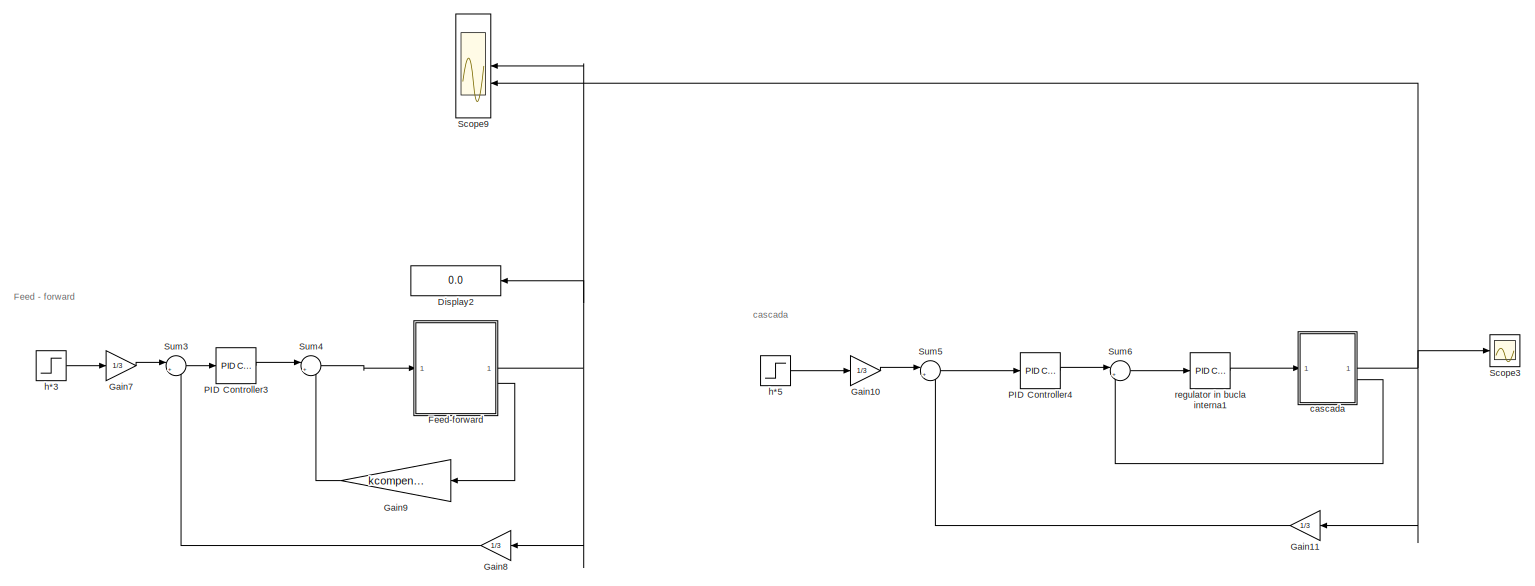
[diagram: root canvas - part 1/4, central region]
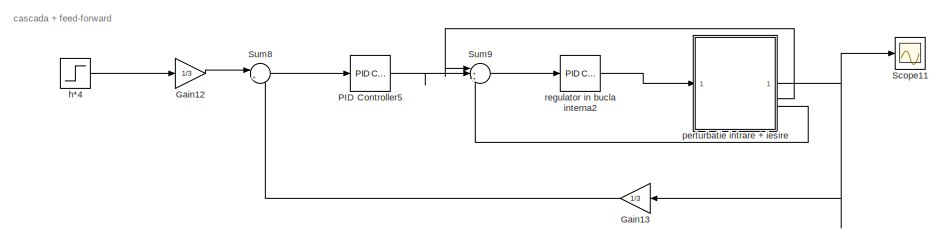
[diagram: root canvas - part 2/4, middle right region]
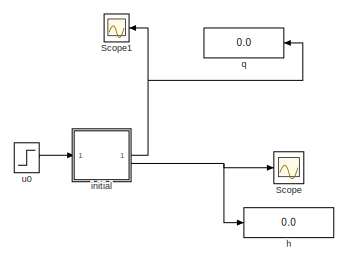
[diagram: root canvas - part 3/4, middle left region]
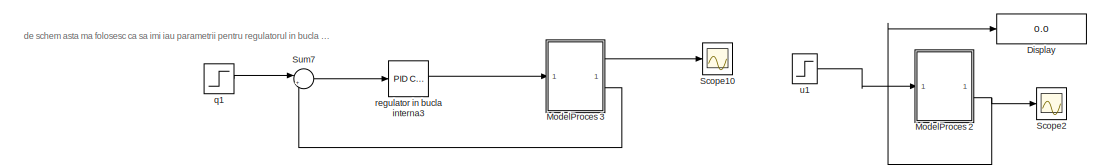
[diagram: root canvas - part 4/4, bottom center region]
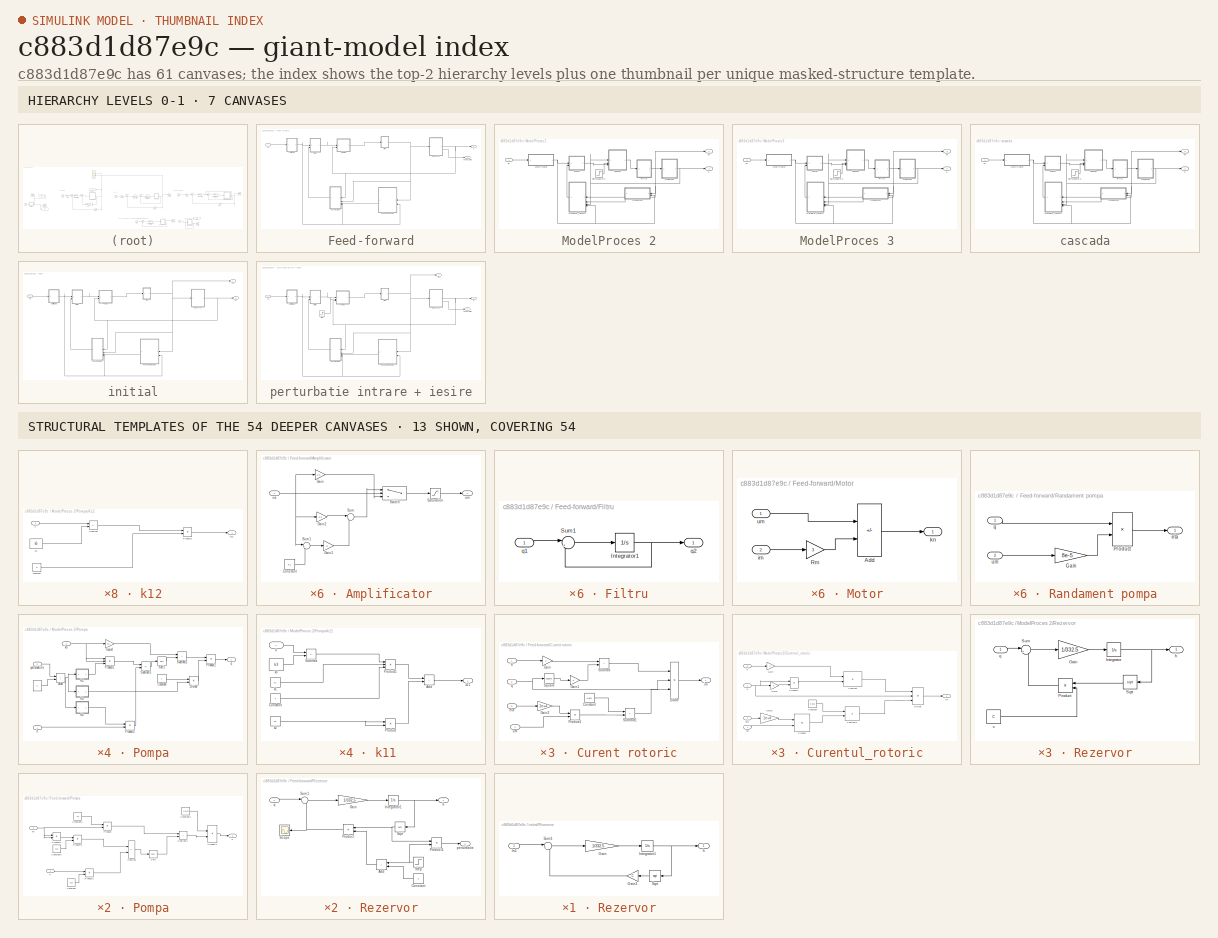
[diagram: thumbnail index - top-2 hierarchy levels (7 canvases) + 13 structural-template representatives of the remaining 54 canvases]
MODEL slx_c883d1d87e9c
KIND model
CONFIG AbsTol = auto
CONFIG EnableMultiTasking = off
CONFIG FixedStep = 0.01
CONFIG MaxStep = auto
CONFIG MinStep = auto
CONFIG RelTol = 1e-3
CONFIG SampleTimeConstraint = Unconstrained
CONFIG SolverName = FixedStepAuto
CONFIG StartTime = 0.0
CONFIG StopTime = 900
BLOCK [Display] Display
  Decimation = 1
BLOCK [Display] Display2
  Decimation = 1
  NameLocation = top
BLOCK [SubSystem] Feed-forward
BLOCK [SubSystem] Feed-forward/Amplificator
BLOCK [Constant] Feed-forward/Amplificator/Constant
  Value = 8.1
BLOCK [Gain] Feed-forward/Amplificator/Gain
  Gain = 2.2
BLOCK [Gain] Feed-forward/Amplificator/Gain1
  Gain = 5
BLOCK [Gain] Feed-forward/Amplificator/Gain2
  Gain = 2.2
BLOCK [Saturate] Feed-forward/Amplificator/Saturation
  LowerLimit = 0
  UpperLimit = 22
BLOCK [Sum] Feed-forward/Amplificator/Sum
  Inputs = |++
BLOCK [Sum] Feed-forward/Amplificator/Sum1
  Inputs = |+-
BLOCK [Switch] Feed-forward/Amplificator/Switch
  Criteria = u2 > Threshold
  InputSameDT = off
  SaturateOnIntegerOverflow = off
  Threshold = 8.1
BLOCK [Inport] Feed-forward/Amplificator/ua
BLOCK [Outport] Feed-forward/Amplificator/um
BLOCK [SubSystem] Feed-forward/Curent rotoric
  NameLocation = top
BLOCK [Constant] Feed-forward/Curent rotoric/Constant
  Value = 0.001
BLOCK [Product] Feed-forward/Curent rotoric/Divide
  Inputs = **/
BLOCK [Gain] Feed-forward/Curent rotoric/Gain
  Gain = 2
BLOCK [Gain] Feed-forward/Curent rotoric/Gain1
  Gain = k
BLOCK [Gain] Feed-forward/Curent rotoric/Gain2
  Gain = 1e+4
BLOCK [Product] Feed-forward/Curent rotoric/Product1
BLOCK [Math] Feed-forward/Curent rotoric/Square
  Operator = square
BLOCK [Sum] Feed-forward/Curent rotoric/Subtract
  IconShape = rectangular
BLOCK [Sum] Feed-forward/Curent rotoric/Subtract1
  IconShape = rectangular
BLOCK [Inport] Feed-forward/Curent rotoric/eta
  Port = 3
BLOCK [Inport] Feed-forward/Curent rotoric/h
BLOCK [Outport] Feed-forward/Curent rotoric/im
BLOCK [Inport] Feed-forward/Curent rotoric/q
  Port = 2
BLOCK [Inport] Feed-forward/Curent rotoric/um
  Port = 4
BLOCK [SubSystem] Feed-forward/Filtru
BLOCK [Integrator] Feed-forward/Filtru/Integrator1
  InitialCondition = q0
BLOCK [Sum] Feed-forward/Filtru/Sum1
  Inputs = |+-
BLOCK [Inport] Feed-forward/Filtru/q1
BLOCK [Outport] Feed-forward/Filtru/q2
BLOCK [SubSystem] Feed-forward/Motor
BLOCK [Sum] Feed-forward/Motor/Add
  IconShape = rectangular
  Inputs = +-
BLOCK [Gain] Feed-forward/Motor/Rm
  Gain = 3
BLOCK [Inport] Feed-forward/Motor/im
  Port = 2
BLOCK [Outport] Feed-forward/Motor/kn
BLOCK [Inport] Feed-forward/Motor/um
BLOCK [SubSystem] Feed-forward/Pompa
BLOCK [Constant] Feed-forward/Pompa/Constant
  Value = k12
BLOCK [Constant] Feed-forward/Pompa/Constant1
  Value = k2
BLOCK [Constant] Feed-forward/Pompa/Constant2
  Value = k11
BLOCK [Constant] Feed-forward/Pompa/Constant3
  Value = 1/k13
BLOCK [Product] Feed-forward/Pompa/Product
BLOCK [Product] Feed-forward/Pompa/Product1
BLOCK [Product] Feed-forward/Pompa/Product2
BLOCK [Product] Feed-forward/Pompa/Product3
BLOCK [Product] Feed-forward/Pompa/Product4
BLOCK [Sqrt] Feed-forward/Pompa/Sqrt
BLOCK [Sum] Feed-forward/Pompa/Subtract
  IconShape = rectangular
  Inputs = +-
BLOCK [Sum] Feed-forward/Pompa/Subtract1
  IconShape = rectangular
BLOCK [Inport] Feed-forward/Pompa/h
  Port = 2
BLOCK [Inport] Feed-forward/Pompa/kn
BLOCK [Outport] Feed-forward/Pompa/q
BLOCK [SubSystem] Feed-forward/Randament pompa
  NameLocation = top
BLOCK [Gain] Feed-forward/Randament pompa/Gain
  Gain = 8e-5
BLOCK [Product] Feed-forward/Randament pompa/Product
BLOCK [Outport] Feed-forward/Randament pompa/eta
BLOCK [Inport] Feed-forward/Randament pompa/q
BLOCK [Inport] Feed-forward/Randament pompa/um
  Port = 2
BLOCK [SubSystem] Feed-forward/Rezervor
BLOCK [Sum] Feed-forward/Rezervor/Add
  IconShape = rectangular
  NameLocation = top
BLOCK [Constant] Feed-forward/Rezervor/Constant
  NameLocation = top
  Value = C
BLOCK [Gain] Feed-forward/Rezervor/Gain
  Gain = 1/332.5
BLOCK [Integrator] Feed-forward/Rezervor/Integrator1
  InitialCondition = h0
BLOCK [Product] Feed-forward/Rezervor/Product
  NameLocation = top
BLOCK [Product] Feed-forward/Rezervor/Product1
BLOCK [Scope] Feed-forward/Rezervor/Scope
  Floating = off
  NameLocation = top
  NumInputPorts = 1
  ScopeSpecificationString = Simulink.scopes.TimeScopeBlockCfg('CurrentConfiguration', extmgr.ConfigurationSet(extmgr.Configuration('Core','General UI',true),extmgr.Configuration('Core','Source UI',true),extmgr.Configuration('Sources','WiredSimulink',true,'DataLoggingVariableName','ScopeData12'),extmgr.Configuration('Visuals','Time Domain',true,'SerializedDisplays',{struct('MinYLimReal','20.53588','MaxYLimReal','24.48532','YL...<+1373ch>
BLOCK [Sqrt] Feed-forward/Rezervor/Sqrt
  NameLocation = top
BLOCK [Step] Feed-forward/Rezervor/Step
  After = 0.11
  NameLocation = top
  SampleTime = 0
  Time = 500
BLOCK [Sum] Feed-forward/Rezervor/Sum1
  Inputs = |+-
BLOCK [Outport] Feed-forward/Rezervor/h
BLOCK [Outport] Feed-forward/Rezervor/perturbatie
  Port = 2
BLOCK [Inport] Feed-forward/Rezervor/q
BLOCK [Outport] Feed-forward/h
BLOCK [Outport] Feed-forward/perturbatie
  Port = 2
BLOCK [Inport] Feed-forward/uc
BLOCK [Gain] Gain10
  Gain = 1/3
BLOCK [Gain] Gain11
  Gain = 1/3
  NameLocation = top
BLOCK [Gain] Gain12
  Gain = 1/3
BLOCK [Gain] Gain13
  Gain = 1/3
  NameLocation = top
BLOCK [Gain] Gain7
  Gain = 1/3
BLOCK [Gain] Gain8
  Gain = 1/3
  NameLocation = top
BLOCK [Gain] Gain9
  Gain = kcompensare
  NameLocation = top
BLOCK [SubSystem] ModelProces 2
BLOCK [SubSystem] ModelProces 2/Amplificator 
BLOCK [Constant] ModelProces 2/Amplificator /Constant
  Value = 8.1
BLOCK [Gain] ModelProces 2/Amplificator /Gain
  Gain = 2.2
BLOCK [Gain] ModelProces 2/Amplificator /Gain1
  Gain = 2.2
BLOCK [Gain] ModelProces 2/Amplificator /Gain2
  Gain = 5
BLOCK [Saturate] ModelProces 2/Amplificator /Saturation
  LowerLimit = 0
  UpperLimit = 22
BLOCK [Sum] ModelProces 2/Amplificator /Sum
  Inputs = |++
BLOCK [Sum] ModelProces 2/Amplificator /Sum1
  Inputs = |+-
BLOCK [Switch] ModelProces 2/Amplificator /Switch
  InputSameDT = off
  SaturateOnIntegerOverflow = off
  Threshold = 8.1
BLOCK [Inport] ModelProces 2/Amplificator /ua
BLOCK [Outport] ModelProces 2/Amplificator /um 
BLOCK [SubSystem] ModelProces 2/Curentul_rotoric
BLOCK [Constant] ModelProces 2/Curentul_rotoric/Constant
  Value = 0.001
BLOCK [Product] ModelProces 2/Curentul_rotoric/Divide
  Inputs = **/
BLOCK [Gain] ModelProces 2/Curentul_rotoric/Gain
  Gain = 2
BLOCK [Gain] ModelProces 2/Curentul_rotoric/Gain1
  Gain = k
BLOCK [Gain] ModelProces 2/Curentul_rotoric/Gain2
  Gain = 1e+4
BLOCK [Product] ModelProces 2/Curentul_rotoric/Product
BLOCK [Product] ModelProces 2/Curentul_rotoric/Product1
BLOCK [Sum] ModelProces 2/Curentul_rotoric/Subtract
  IconShape = rectangular
BLOCK [Sum] ModelProces 2/Curentul_rotoric/Subtract1
  IconShape = rectangular
BLOCK [Inport] ModelProces 2/Curentul_rotoric/eta
  Port = 2
BLOCK [Inport] ModelProces 2/Curentul_rotoric/h
  Port = 3
BLOCK [Outport] ModelProces 2/Curentul_rotoric/im
BLOCK [Inport] ModelProces 2/Curentul_rotoric/q
BLOCK [Inport] ModelProces 2/Curentul_rotoric/um
  Port = 4
BLOCK [SubSystem] ModelProces 2/Filtru
BLOCK [Integrator] ModelProces 2/Filtru/Integrator
  InitialCondition = 20.97
BLOCK [Sum] ModelProces 2/Filtru/Sum
  Inputs = |+-
BLOCK [Inport] ModelProces 2/Filtru/q
BLOCK [Outport] ModelProces 2/Filtru/q_f
BLOCK [SubSystem] ModelProces 2/Motor 
BLOCK [Sum] ModelProces 2/Motor /Add
  IconShape = rectangular
  Inputs = +-
BLOCK [Gain] ModelProces 2/Motor /Rm
  Gain = 3
BLOCK [Inport] ModelProces 2/Motor /im
  Port = 2
BLOCK [Outport] ModelProces 2/Motor /kn
BLOCK [Inport] ModelProces 2/Motor /um
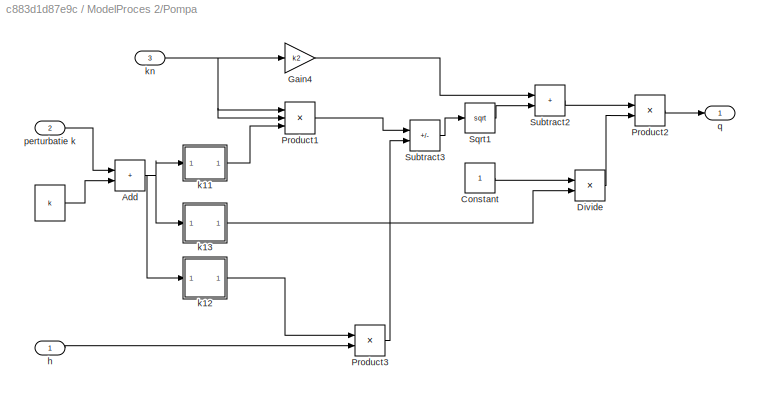
BLOCK [SubSystem] ModelProces 2/Pompa
BLOCK [Constant] ModelProces 2/Pompa/ 
  Value = k
BLOCK [Sum] ModelProces 2/Pompa/Add
  IconShape = rectangular
BLOCK [Constant] ModelProces 2/Pompa/Constant
BLOCK [Product] ModelProces 2/Pompa/Divide
  Inputs = */
BLOCK [Gain] ModelProces 2/Pompa/Gain4
  Gain = k2
BLOCK [Product] ModelProces 2/Pompa/Product1
  Inputs = 3
BLOCK [Product] ModelProces 2/Pompa/Product2
BLOCK [Product] ModelProces 2/Pompa/Product3
BLOCK [Sqrt] ModelProces 2/Pompa/Sqrt1
BLOCK [Sum] ModelProces 2/Pompa/Subtract2
  IconShape = rectangular
BLOCK [Sum] ModelProces 2/Pompa/Subtract3
  IconShape = rectangular
  Inputs = +-
BLOCK [Inport] ModelProces 2/Pompa/h
BLOCK [SubSystem] ModelProces 2/Pompa/k11 
BLOCK [Sum] ModelProces 2/Pompa/k11 /Add
  IconShape = rectangular
BLOCK [Constant] ModelProces 2/Pompa/k11 /Constant
  Value = 4
BLOCK [Product] ModelProces 2/Pompa/k11 /Product
BLOCK [Product] ModelProces 2/Pompa/k11 /Product1
  Inputs = 3
BLOCK [Sum] ModelProces 2/Pompa/k11 /Subtract
  IconShape = rectangular
  Inputs = +-
BLOCK [Inport] ModelProces 2/Pompa/k11 /k
BLOCK [Constant] ModelProces 2/Pompa/k11 /k1
  Value = k1
BLOCK [Outport] ModelProces 2/Pompa/k11 /k11
BLOCK [Constant] ModelProces 2/Pompa/k11 /k2
  Value = k2
BLOCK [Constant] ModelProces 2/Pompa/k11 /k3
  Value = k3
BLOCK [SubSystem] ModelProces 2/Pompa/k12
BLOCK [Product] ModelProces 2/Pompa/k12/Product1
BLOCK [Sum] ModelProces 2/Pompa/k12/Subtract
  IconShape = rectangular
  Inputs = +-
BLOCK [Constant] ModelProces 2/Pompa/k12/constant 
  Value = 8
BLOCK [Inport] ModelProces 2/Pompa/k12/k
BLOCK [Outport] ModelProces 2/Pompa/k12/k12
BLOCK [Constant] ModelProces 2/Pompa/k12/k3
  Value = k3
BLOCK [SubSystem] ModelProces 2/Pompa/k13
BLOCK [Product] ModelProces 2/Pompa/k13/Product1
BLOCK [Sum] ModelProces 2/Pompa/k13/Subtract
  IconShape = rectangular
  Inputs = +-
BLOCK [Constant] ModelProces 2/Pompa/k13/constant 
  Value = 2
BLOCK [Inport] ModelProces 2/Pompa/k13/k
BLOCK [Outport] ModelProces 2/Pompa/k13/k13
  NameLocation = top
BLOCK [Constant] ModelProces 2/Pompa/k13/k3
  Value = k3
BLOCK [Inport] ModelProces 2/Pompa/kn
  Port = 3
BLOCK [Inport] ModelProces 2/Pompa/perturbatie k
  Port = 2
BLOCK [Outport] ModelProces 2/Pompa/q
BLOCK [SubSystem] ModelProces 2/Randament
BLOCK [Gain] ModelProces 2/Randament/Gain
  Gain = 8e-5
BLOCK [Product] ModelProces 2/Randament/Product
BLOCK [Outport] ModelProces 2/Randament/eta 
BLOCK [Inport] ModelProces 2/Randament/q 
BLOCK [Inport] ModelProces 2/Randament/um
  Port = 2
BLOCK [SubSystem] ModelProces 2/Rezervor
BLOCK [Gain] ModelProces 2/Rezervor/Gain
  Gain = 1/332.5
BLOCK [Integrator] ModelProces 2/Rezervor/Integrator
  InitialCondition = 13.98
BLOCK [Product] ModelProces 2/Rezervor/Product
  NameLocation = top
BLOCK [Sqrt] ModelProces 2/Rezervor/Sqrt
  NameLocation = top
BLOCK [Sum] ModelProces 2/Rezervor/Sum
  Inputs = |+-
BLOCK [Constant] ModelProces 2/Rezervor/c
  Value = C
BLOCK [Outport] ModelProces 2/Rezervor/h
BLOCK [Inport] ModelProces 2/Rezervor/q
BLOCK [Outport] ModelProces 2/h
BLOCK [Step] ModelProces 2/perturbatie k
  After = 0.03
  SampleTime = 0
  Time = 300
BLOCK [Outport] ModelProces 2/qi
  Port = 2
BLOCK [Inport] ModelProces 2/uc
BLOCK [SubSystem] ModelProces 3
BLOCK [SubSystem] ModelProces 3/Amplificator 
BLOCK [Constant] ModelProces 3/Amplificator /Constant
  Value = 8.1
BLOCK [Gain] ModelProces 3/Amplificator /Gain
  Gain = 2.2
BLOCK [Gain] ModelProces 3/Amplificator /Gain1
  Gain = 2.2
BLOCK [Gain] ModelProces 3/Amplificator /Gain2
  Gain = 5
BLOCK [Saturate] ModelProces 3/Amplificator /Saturation
  LowerLimit = 0
  UpperLimit = 22
BLOCK [Sum] ModelProces 3/Amplificator /Sum
  Inputs = |++
BLOCK [Sum] ModelProces 3/Amplificator /Sum1
  Inputs = |+-
BLOCK [Switch] ModelProces 3/Amplificator /Switch
  InputSameDT = off
  SaturateOnIntegerOverflow = off
  Threshold = 8.1
BLOCK [Inport] ModelProces 3/Amplificator /ua
BLOCK [Outport] ModelProces 3/Amplificator /um 
BLOCK [SubSystem] ModelProces 3/Curentul_rotoric
BLOCK [Constant] ModelProces 3/Curentul_rotoric/Constant
  Value = 0.001
BLOCK [Product] ModelProces 3/Curentul_rotoric/Divide
  Inputs = **/
BLOCK [Gain] ModelProces 3/Curentul_rotoric/Gain
  Gain = 2
BLOCK [Gain] ModelProces 3/Curentul_rotoric/Gain1
  Gain = k
BLOCK [Gain] ModelProces 3/Curentul_rotoric/Gain2
  Gain = 1e+4
BLOCK [Product] ModelProces 3/Curentul_rotoric/Product
BLOCK [Product] ModelProces 3/Curentul_rotoric/Product1
BLOCK [Sum] ModelProces 3/Curentul_rotoric/Subtract
  IconShape = rectangular
BLOCK [Sum] ModelProces 3/Curentul_rotoric/Subtract1
  IconShape = rectangular
BLOCK [Inport] ModelProces 3/Curentul_rotoric/eta
  Port = 2
BLOCK [Inport] ModelProces 3/Curentul_rotoric/h
  Port = 3
BLOCK [Outport] ModelProces 3/Curentul_rotoric/im
BLOCK [Inport] ModelProces 3/Curentul_rotoric/q
BLOCK [Inport] ModelProces 3/Curentul_rotoric/um
  Port = 4
BLOCK [SubSystem] ModelProces 3/Filtru
BLOCK [Integrator] ModelProces 3/Filtru/Integrator
  InitialCondition = 20.97
BLOCK [Sum] ModelProces 3/Filtru/Sum
  Inputs = |+-
BLOCK [Inport] ModelProces 3/Filtru/q
BLOCK [Outport] ModelProces 3/Filtru/q_f
BLOCK [SubSystem] ModelProces 3/Motor 
BLOCK [Sum] ModelProces 3/Motor /Add
  IconShape = rectangular
  Inputs = +-
BLOCK [Gain] ModelProces 3/Motor /Rm
  Gain = 3
BLOCK [Inport] ModelProces 3/Motor /im
  Port = 2
BLOCK [Outport] ModelProces 3/Motor /kn
BLOCK [Inport] ModelProces 3/Motor /um
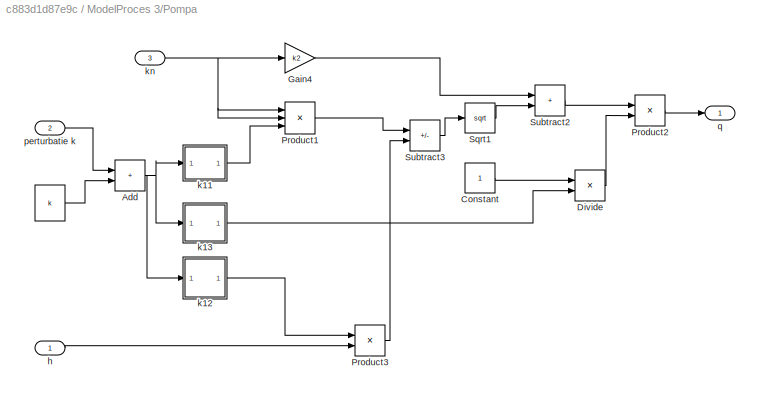
BLOCK [SubSystem] ModelProces 3/Pompa
BLOCK [Constant] ModelProces 3/Pompa/ 
  Value = k
BLOCK [Sum] ModelProces 3/Pompa/Add
  IconShape = rectangular
BLOCK [Constant] ModelProces 3/Pompa/Constant
BLOCK [Product] ModelProces 3/Pompa/Divide
  Inputs = */
BLOCK [Gain] ModelProces 3/Pompa/Gain4
  Gain = k2
BLOCK [Product] ModelProces 3/Pompa/Product1
  Inputs = 3
BLOCK [Product] ModelProces 3/Pompa/Product2
BLOCK [Product] ModelProces 3/Pompa/Product3
BLOCK [Sqrt] ModelProces 3/Pompa/Sqrt1
BLOCK [Sum] ModelProces 3/Pompa/Subtract2
  IconShape = rectangular
BLOCK [Sum] ModelProces 3/Pompa/Subtract3
  IconShape = rectangular
  Inputs = +-
BLOCK [Inport] ModelProces 3/Pompa/h
BLOCK [SubSystem] ModelProces 3/Pompa/k11 
BLOCK [Sum] ModelProces 3/Pompa/k11 /Add
  IconShape = rectangular
BLOCK [Constant] ModelProces 3/Pompa/k11 /Constant
  Value = 4
BLOCK [Product] ModelProces 3/Pompa/k11 /Product
BLOCK [Product] ModelProces 3/Pompa/k11 /Product1
  Inputs = 3
BLOCK [Sum] ModelProces 3/Pompa/k11 /Subtract
  IconShape = rectangular
  Inputs = +-
BLOCK [Inport] ModelProces 3/Pompa/k11 /k
BLOCK [Constant] ModelProces 3/Pompa/k11 /k1
  Value = k1
BLOCK [Outport] ModelProces 3/Pompa/k11 /k11
BLOCK [Constant] ModelProces 3/Pompa/k11 /k2
  Value = k2
BLOCK [Constant] ModelProces 3/Pompa/k11 /k3
  Value = k3
BLOCK [SubSystem] ModelProces 3/Pompa/k12
BLOCK [Product] ModelProces 3/Pompa/k12/Product1
BLOCK [Sum] ModelProces 3/Pompa/k12/Subtract
  IconShape = rectangular
  Inputs = +-
BLOCK [Constant] ModelProces 3/Pompa/k12/constant 
  Value = 8
BLOCK [Inport] ModelProces 3/Pompa/k12/k
BLOCK [Outport] ModelProces 3/Pompa/k12/k12
BLOCK [Constant] ModelProces 3/Pompa/k12/k3
  Value = k3
BLOCK [SubSystem] ModelProces 3/Pompa/k13
BLOCK [Product] ModelProces 3/Pompa/k13/Product1
BLOCK [Sum] ModelProces 3/Pompa/k13/Subtract
  IconShape = rectangular
  Inputs = +-
BLOCK [Constant] ModelProces 3/Pompa/k13/constant 
  Value = 2
BLOCK [Inport] ModelProces 3/Pompa/k13/k
BLOCK [Outport] ModelProces 3/Pompa/k13/k13
  NameLocation = top
BLOCK [Constant] ModelProces 3/Pompa/k13/k3
  Value = k3
BLOCK [Inport] ModelProces 3/Pompa/kn
  Port = 3
BLOCK [Inport] ModelProces 3/Pompa/perturbatie k
  Port = 2
BLOCK [Outport] ModelProces 3/Pompa/q
BLOCK [SubSystem] ModelProces 3/Randament
BLOCK [Gain] ModelProces 3/Randament/Gain
  Gain = 8e-5
BLOCK [Product] ModelProces 3/Randament/Product
BLOCK [Outport] ModelProces 3/Randament/eta 
BLOCK [Inport] ModelProces 3/Randament/q 
BLOCK [Inport] ModelProces 3/Randament/um
  Port = 2
BLOCK [SubSystem] ModelProces 3/Rezervor
BLOCK [Gain] ModelProces 3/Rezervor/Gain
  Gain = 1/332.5
BLOCK [Integrator] ModelProces 3/Rezervor/Integrator
  InitialCondition = 13.98
BLOCK [Product] ModelProces 3/Rezervor/Product
  NameLocation = top
BLOCK [Sqrt] ModelProces 3/Rezervor/Sqrt
  NameLocation = top
BLOCK [Sum] ModelProces 3/Rezervor/Sum
  Inputs = |+-
BLOCK [Constant] ModelProces 3/Rezervor/c
  Value = C
BLOCK [Outport] ModelProces 3/Rezervor/h
BLOCK [Inport] ModelProces 3/Rezervor/q
BLOCK [Outport] ModelProces 3/h
BLOCK [Step] ModelProces 3/perturbatie k
  After = 0.03
  SampleTime = 0
  Time = 300
BLOCK [Outport] ModelProces 3/qi
  Port = 2
BLOCK [Inport] ModelProces 3/uc
BLOCK [Reference] PID Controller3  REF=slpidlib/PID Controller
  LibrarySourceBlock = simulink/Continuous/PID Controller
  SourceBlock = slpidlib/PID Controller
  SourceType = PID 1dof
BLOCK [Reference] PID Controller4  REF=slpidlib/PID Controller
  LibrarySourceBlock = simulink/Continuous/PID Controller
  SourceBlock = slpidlib/PID Controller
  SourceType = PID 1dof
BLOCK [Reference] PID Controller5  REF=slpidlib/PID Controller
  LibrarySourceBlock = simulink/Continuous/PID Controller
  SourceBlock = slpidlib/PID Controller
  SourceType = PID 1dof
BLOCK [Scope] Scope
  Floating = off
  NumInputPorts = 1
  ScopeSpecificationString = Simulink.scopes.TimeScopeBlockCfg('CurrentConfiguration', extmgr.ConfigurationSet(extmgr.Configuration('Core','General UI',true),extmgr.Configuration('Core','Source UI',true),extmgr.Configuration('Sources','WiredSimulink',true,'DataLoggingVariableName','ScopeData1'),extmgr.Configuration('Visuals','Time Domain',true),extmgr.Configuration('Tools','Plot Navigation',true),extmgr.Configuration('Tools',...<+40ch>
BLOCK [Scope] Scope1
  Floating = off
  NameLocation = top
  NumInputPorts = 1
  ScopeSpecificationString = Simulink.scopes.TimeScopeBlockCfg('CurrentConfiguration', extmgr.ConfigurationSet(extmgr.Configuration('Core','General UI',true),extmgr.Configuration('Core','Source UI',true),extmgr.Configuration('Sources','WiredSimulink',true,'DataLoggingVariableName','ScopeData2'),extmgr.Configuration('Visuals','Time Domain',true,'SerializedDisplays',{struct('MinYLimReal','24.88284','MaxYLimReal','27.65148','YLa...<+1732ch>
BLOCK [Scope] Scope10
  Floating = off
  NumInputPorts = 1
  ScopeSpecificationString = Simulink.scopes.TimeScopeBlockCfg('CurrentConfiguration', extmgr.ConfigurationSet(extmgr.Configuration('Core','General UI',true),extmgr.Configuration('Core','Source UI',true),extmgr.Configuration('Sources','WiredSimulink',true,'DataLoggingVariableName','ScopeData3'),extmgr.Configuration('Visuals','Time Domain',true,'SerializedDisplays',{struct('MinYLimReal','12.39515','MaxYLimReal','28.24362','YLa...<+1740ch>
BLOCK [Scope] Scope11
  Floating = off
  NumInputPorts = 1
  ScopeSpecificationString = Simulink.scopes.TimeScopeBlockCfg('CurrentConfiguration', extmgr.ConfigurationSet(extmgr.Configuration('Core','General UI',true),extmgr.Configuration('Core','Source UI',true),extmgr.Configuration('Sources','WiredSimulink',true,'DataLoggingVariableName','ScopeData4'),extmgr.Configuration('Visuals','Time Domain',true,'SerializedDisplays',{struct('MinYLimReal','17.76788','MaxYLimReal','17.84849','YLa...<+1479ch>
BLOCK [Scope] Scope2
  Floating = off
  NumInputPorts = 1
  ScopeSpecificationString = Simulink.scopes.TimeScopeBlockCfg('CurrentConfiguration', extmgr.ConfigurationSet(extmgr.Configuration('Core','General UI',true),extmgr.Configuration('Core','Source UI',true),extmgr.Configuration('Sources','WiredSimulink',true,'DataLoggingVariableName','ScopeData5'),extmgr.Configuration('Visuals','Time Domain',true,'SerializedDisplays',{struct('MinYLimReal','16.87571','MaxYLimReal','30.4598','YLab...<+1711ch>
BLOCK [Scope] Scope3
  Floating = off
  NumInputPorts = 1
  ScopeSpecificationString = Simulink.scopes.TimeScopeBlockCfg('CurrentConfiguration', extmgr.ConfigurationSet(extmgr.Configuration('Core','General UI',true),extmgr.Configuration('Core','Source UI',true),extmgr.Configuration('Sources','WiredSimulink',true,'DataLoggingVariableName','ScopeData6'),extmgr.Configuration('Visuals','Time Domain',true,'SerializedDisplays',{struct('MinYLimReal','17.80233','MaxYLimReal','17.87287','YLa...<+1464ch>
BLOCK [Scope] Scope9
  Floating = off
  NameLocation = top
  NumInputPorts = 2
  ScopeSpecificationString = Simulink.scopes.TimeScopeBlockCfg('CurrentConfiguration', extmgr.ConfigurationSet(extmgr.Configuration('Core','General UI',true),extmgr.Configuration('Core','Source UI',true),extmgr.Configuration('Sources','WiredSimulink',true,'DataLoggingVariableName','ScopeData7'),extmgr.Configuration('Visuals','Time Domain',true,'SerializedDisplays',{struct('MinYLimReal','13.48279','MaxYLimReal','18.35493','YLa...<+1499ch>
BLOCK [Sum] Sum3
  Inputs = |+-
BLOCK [Sum] Sum4
  Inputs = |++
BLOCK [Sum] Sum5
  Inputs = |+-
BLOCK [Sum] Sum6
  Inputs = |+-
BLOCK [Sum] Sum7
  Inputs = |+-
BLOCK [Sum] Sum8
  Inputs = |+-
BLOCK [Sum] Sum9
  Inputs = |++-
BLOCK [SubSystem] cascada
BLOCK [SubSystem] cascada/Amplificator 
BLOCK [Constant] cascada/Amplificator /Constant
  Value = 8.1
BLOCK [Gain] cascada/Amplificator /Gain
  Gain = 2.2
BLOCK [Gain] cascada/Amplificator /Gain1
  Gain = 2.2
BLOCK [Gain] cascada/Amplificator /Gain2
  Gain = 5
BLOCK [Saturate] cascada/Amplificator /Saturation
  LowerLimit = 0
  UpperLimit = 22
BLOCK [Sum] cascada/Amplificator /Sum
  Inputs = |++
BLOCK [Sum] cascada/Amplificator /Sum1
  Inputs = |+-
BLOCK [Switch] cascada/Amplificator /Switch
  InputSameDT = off
  SaturateOnIntegerOverflow = off
  Threshold = 8.1
BLOCK [Inport] cascada/Amplificator /ua
BLOCK [Outport] cascada/Amplificator /um 
BLOCK [SubSystem] cascada/Curentul_rotoric
BLOCK [Constant] cascada/Curentul_rotoric/Constant
  Value = 0.001
BLOCK [Product] cascada/Curentul_rotoric/Divide
  Inputs = **/
BLOCK [Gain] cascada/Curentul_rotoric/Gain
  Gain = 2
BLOCK [Gain] cascada/Curentul_rotoric/Gain1
  Gain = k
BLOCK [Gain] cascada/Curentul_rotoric/Gain2
  Gain = 1e+4
BLOCK [Product] cascada/Curentul_rotoric/Product
BLOCK [Product] cascada/Curentul_rotoric/Product1
BLOCK [Sum] cascada/Curentul_rotoric/Subtract
  IconShape = rectangular
BLOCK [Sum] cascada/Curentul_rotoric/Subtract1
  IconShape = rectangular
BLOCK [Inport] cascada/Curentul_rotoric/eta
  Port = 2
BLOCK [Inport] cascada/Curentul_rotoric/h
  Port = 3
BLOCK [Outport] cascada/Curentul_rotoric/im
BLOCK [Inport] cascada/Curentul_rotoric/q
BLOCK [Inport] cascada/Curentul_rotoric/um
  Port = 4
BLOCK [SubSystem] cascada/Filtru
BLOCK [Integrator] cascada/Filtru/Integrator
  InitialCondition = 20.97
BLOCK [Sum] cascada/Filtru/Sum
  Inputs = |+-
BLOCK [Inport] cascada/Filtru/q
BLOCK [Outport] cascada/Filtru/q_f
BLOCK [SubSystem] cascada/Motor 
BLOCK [Sum] cascada/Motor /Add
  IconShape = rectangular
  Inputs = +-
BLOCK [Gain] cascada/Motor /Rm
  Gain = 3
BLOCK [Inport] cascada/Motor /im
  Port = 2
BLOCK [Outport] cascada/Motor /kn
BLOCK [Inport] cascada/Motor /um
BLOCK [SubSystem] cascada/Pompa
BLOCK [Constant] cascada/Pompa/ 
  Value = k
BLOCK [Sum] cascada/Pompa/Add
  IconShape = rectangular
BLOCK [Constant] cascada/Pompa/Constant
BLOCK [Product] cascada/Pompa/Divide
  Inputs = */
BLOCK [Gain] cascada/Pompa/Gain4
  Gain = k2
BLOCK [Product] cascada/Pompa/Product1
  Inputs = 3
BLOCK [Product] cascada/Pompa/Product2
BLOCK [Product] cascada/Pompa/Product3
BLOCK [Sqrt] cascada/Pompa/Sqrt1
BLOCK [Sum] cascada/Pompa/Subtract2
  IconShape = rectangular
BLOCK [Sum] cascada/Pompa/Subtract3
  IconShape = rectangular
  Inputs = +-
BLOCK [Inport] cascada/Pompa/h
BLOCK [SubSystem] cascada/Pompa/k11 
BLOCK [Sum] cascada/Pompa/k11 /Add
  IconShape = rectangular
BLOCK [Constant] cascada/Pompa/k11 /Constant
  Value = 4
BLOCK [Product] cascada/Pompa/k11 /Product
BLOCK [Product] cascada/Pompa/k11 /Product1
  Inputs = 3
BLOCK [Sum] cascada/Pompa/k11 /Subtract
  IconShape = rectangular
  Inputs = +-
BLOCK [Inport] cascada/Pompa/k11 /k
BLOCK [Constant] cascada/Pompa/k11 /k1
  Value = k1
BLOCK [Outport] cascada/Pompa/k11 /k11
BLOCK [Constant] cascada/Pompa/k11 /k2
  Value = k2
BLOCK [Constant] cascada/Pompa/k11 /k3
  Value = k3
BLOCK [SubSystem] cascada/Pompa/k12
BLOCK [Product] cascada/Pompa/k12/Product1
BLOCK [Sum] cascada/Pompa/k12/Subtract
  IconShape = rectangular
  Inputs = +-
BLOCK [Constant] cascada/Pompa/k12/constant 
  Value = 8
BLOCK [Inport] cascada/Pompa/k12/k
BLOCK [Outport] cascada/Pompa/k12/k12
BLOCK [Constant] cascada/Pompa/k12/k3
  Value = k3
BLOCK [SubSystem] cascada/Pompa/k13
BLOCK [Product] cascada/Pompa/k13/Product1
BLOCK [Sum] cascada/Pompa/k13/Subtract
  IconShape = rectangular
  Inputs = +-
BLOCK [Constant] cascada/Pompa/k13/constant 
  Value = 2
BLOCK [Inport] cascada/Pompa/k13/k
BLOCK [Outport] cascada/Pompa/k13/k13
  NameLocation = top
BLOCK [Constant] cascada/Pompa/k13/k3
  Value = k3
BLOCK [Inport] cascada/Pompa/kn
  Port = 3
BLOCK [Inport] cascada/Pompa/perturbatie k
  Port = 2
BLOCK [Outport] cascada/Pompa/q
BLOCK [SubSystem] cascada/Randament
BLOCK [Gain] cascada/Randament/Gain
  Gain = 8e-5
BLOCK [Product] cascada/Randament/Product
BLOCK [Outport] cascada/Randament/eta 
BLOCK [Inport] cascada/Randament/q 
BLOCK [Inport] cascada/Randament/um
  Port = 2
BLOCK [SubSystem] cascada/Rezervor
BLOCK [Gain] cascada/Rezervor/Gain
  Gain = 1/332.5
BLOCK [Integrator] cascada/Rezervor/Integrator
  InitialCondition = 13.98
BLOCK [Product] cascada/Rezervor/Product
  NameLocation = top
BLOCK [Sqrt] cascada/Rezervor/Sqrt
  NameLocation = top
BLOCK [Sum] cascada/Rezervor/Sum
  Inputs = |+-
BLOCK [Constant] cascada/Rezervor/c
  Value = C
BLOCK [Outport] cascada/Rezervor/h
BLOCK [Inport] cascada/Rezervor/q
BLOCK [Outport] cascada/h
BLOCK [Step] cascada/perturbatie k
  After = -0.02
  SampleTime = 0
  Time = 300
BLOCK [Outport] cascada/qi
  Port = 2
BLOCK [Inport] cascada/uc
BLOCK [Display] h
  Decimation = 1
BLOCK [Step] h*3
  After = h1
  Before = h0
  SampleTime = 0
BLOCK [Step] h*4
  After = h1
  Before = h0
  SampleTime = 0
  Time = 0
BLOCK [Step] h*5
  After = h1
  Before = h0
  SampleTime = 0
  Time = 0
BLOCK [SubSystem] initial
BLOCK [SubSystem] initial/Amplificator
BLOCK [Constant] initial/Amplificator/Constant
  Value = 8.1
BLOCK [Gain] initial/Amplificator/Gain
  Gain = 2.2
BLOCK [Gain] initial/Amplificator/Gain1
  Gain = 5
BLOCK [Gain] initial/Amplificator/Gain2
  Gain = 2.2
BLOCK [Saturate] initial/Amplificator/Saturation
  LowerLimit = 0
  UpperLimit = 22
BLOCK [Sum] initial/Amplificator/Sum
  Inputs = |++
BLOCK [Sum] initial/Amplificator/Sum1
  Inputs = |+-
BLOCK [Switch] initial/Amplificator/Switch
  Criteria = u2 > Threshold
  InputSameDT = off
  SaturateOnIntegerOverflow = off
  Threshold = 8.1
BLOCK [Inport] initial/Amplificator/ua
BLOCK [Outport] initial/Amplificator/um
BLOCK [SubSystem] initial/Curent rotoric
  NameLocation = top
BLOCK [Constant] initial/Curent rotoric/Constant
  Value = 0.001
BLOCK [Product] initial/Curent rotoric/Divide
  Inputs = **/
BLOCK [Gain] initial/Curent rotoric/Gain
  Gain = 2
BLOCK [Gain] initial/Curent rotoric/Gain1
  Gain = k
BLOCK [Gain] initial/Curent rotoric/Gain2
  Gain = 1e+4
BLOCK [Product] initial/Curent rotoric/Product1
BLOCK [Math] initial/Curent rotoric/Square
  Operator = square
BLOCK [Sum] initial/Curent rotoric/Subtract
  IconShape = rectangular
BLOCK [Sum] initial/Curent rotoric/Subtract1
  IconShape = rectangular
BLOCK [Inport] initial/Curent rotoric/eta
  Port = 3
BLOCK [Inport] initial/Curent rotoric/h
BLOCK [Outport] initial/Curent rotoric/im
BLOCK [Inport] initial/Curent rotoric/q
  Port = 2
BLOCK [Inport] initial/Curent rotoric/um
  Port = 4
BLOCK [SubSystem] initial/Filtru
BLOCK [Integrator] initial/Filtru/Integrator1
  InitialCondition = q0
BLOCK [Sum] initial/Filtru/Sum1
  Inputs = |+-
BLOCK [Inport] initial/Filtru/q1
BLOCK [Outport] initial/Filtru/q2
BLOCK [SubSystem] initial/Motor
BLOCK [Sum] initial/Motor/Add
  IconShape = rectangular
  Inputs = +-
BLOCK [Gain] initial/Motor/Rm
  Gain = 3
BLOCK [Inport] initial/Motor/im
  Port = 2
BLOCK [Outport] initial/Motor/kn
BLOCK [Inport] initial/Motor/um
BLOCK [SubSystem] initial/Pompa
BLOCK [Constant] initial/Pompa/Constant
  Value = k12
BLOCK [Constant] initial/Pompa/Constant1
  Value = k2
BLOCK [Constant] initial/Pompa/Constant2
  Value = k11
BLOCK [Constant] initial/Pompa/Constant3
  Value = 1/k13
BLOCK [Product] initial/Pompa/Product
BLOCK [Product] initial/Pompa/Product1
BLOCK [Product] initial/Pompa/Product2
BLOCK [Product] initial/Pompa/Product3
BLOCK [Product] initial/Pompa/Product4
BLOCK [Sqrt] initial/Pompa/Sqrt
BLOCK [Sum] initial/Pompa/Subtract
  IconShape = rectangular
  Inputs = +-
BLOCK [Sum] initial/Pompa/Subtract1
  IconShape = rectangular
BLOCK [Inport] initial/Pompa/h
  Port = 2
BLOCK [Inport] initial/Pompa/kn
BLOCK [Outport] initial/Pompa/q
BLOCK [SubSystem] initial/Randament pompa
  NameLocation = top
BLOCK [Gain] initial/Randament pompa/Gain
  Gain = 8e-5
BLOCK [Product] initial/Randament pompa/Product
BLOCK [Outport] initial/Randament pompa/eta
BLOCK [Inport] initial/Randament pompa/q
BLOCK [Inport] initial/Randament pompa/um
  Port = 2
BLOCK [SubSystem] initial/Rezervor
BLOCK [Gain] initial/Rezervor/Gain
  Gain = 1/332.5
BLOCK [Gain] initial/Rezervor/Gain1
  Gain = C
  NameLocation = top
BLOCK [Integrator] initial/Rezervor/Integrator1
  InitialCondition = h0
BLOCK [Sqrt] initial/Rezervor/Sqrt
  NameLocation = top
BLOCK [Sum] initial/Rezervor/Sum1
  Inputs = |+-
BLOCK [Outport] initial/Rezervor/h
BLOCK [Inport] initial/Rezervor/ln1
BLOCK [Outport] initial/h
  Port = 2
BLOCK [Outport] initial/q
BLOCK [Inport] initial/uc
BLOCK [SubSystem] perturbatie intrare + iesire
BLOCK [SubSystem] perturbatie intrare + iesire/Amplificator
BLOCK [Constant] perturbatie intrare + iesire/Amplificator/Constant
  Value = 8.1
BLOCK [Gain] perturbatie intrare + iesire/Amplificator/Gain
  Gain = 2.2
BLOCK [Gain] perturbatie intrare + iesire/Amplificator/Gain1
  Gain = 5
BLOCK [Gain] perturbatie intrare + iesire/Amplificator/Gain2
  Gain = 2.2
BLOCK [Saturate] perturbatie intrare + iesire/Amplificator/Saturation
  LowerLimit = 0
  UpperLimit = 22
BLOCK [Sum] perturbatie intrare + iesire/Amplificator/Sum
  Inputs = |++
BLOCK [Sum] perturbatie intrare + iesire/Amplificator/Sum1
  Inputs = |+-
BLOCK [Switch] perturbatie intrare + iesire/Amplificator/Switch
  Criteria = u2 > Threshold
  InputSameDT = off
  SaturateOnIntegerOverflow = off
  Threshold = 8.1
BLOCK [Inport] perturbatie intrare + iesire/Amplificator/ua
BLOCK [Outport] perturbatie intrare + iesire/Amplificator/um
BLOCK [SubSystem] perturbatie intrare + iesire/Curent rotoric
  NameLocation = top
BLOCK [Constant] perturbatie intrare + iesire/Curent rotoric/Constant
  Value = 0.001
BLOCK [Product] perturbatie intrare + iesire/Curent rotoric/Divide
  Inputs = **/
BLOCK [Gain] perturbatie intrare + iesire/Curent rotoric/Gain
  Gain = 2
BLOCK [Gain] perturbatie intrare + iesire/Curent rotoric/Gain1
  Gain = k
BLOCK [Gain] perturbatie intrare + iesire/Curent rotoric/Gain2
  Gain = 1e+4
BLOCK [Product] perturbatie intrare + iesire/Curent rotoric/Product1
BLOCK [Math] perturbatie intrare + iesire/Curent rotoric/Square
  Operator = square
BLOCK [Sum] perturbatie intrare + iesire/Curent rotoric/Subtract
  IconShape = rectangular
BLOCK [Sum] perturbatie intrare + iesire/Curent rotoric/Subtract1
  IconShape = rectangular
BLOCK [Inport] perturbatie intrare + iesire/Curent rotoric/eta
  Port = 3
BLOCK [Inport] perturbatie intrare + iesire/Curent rotoric/h
BLOCK [Outport] perturbatie intrare + iesire/Curent rotoric/im
BLOCK [Inport] perturbatie intrare + iesire/Curent rotoric/q
  Port = 2
BLOCK [Inport] perturbatie intrare + iesire/Curent rotoric/um
  Port = 4
BLOCK [SubSystem] perturbatie intrare + iesire/Filtru
BLOCK [Integrator] perturbatie intrare + iesire/Filtru/Integrator1
  InitialCondition = 20.97
BLOCK [Sum] perturbatie intrare + iesire/Filtru/Sum1
  Inputs = |+-
BLOCK [Inport] perturbatie intrare + iesire/Filtru/q1
BLOCK [Outport] perturbatie intrare + iesire/Filtru/q2
BLOCK [SubSystem] perturbatie intrare + iesire/Motor
BLOCK [Sum] perturbatie intrare + iesire/Motor/Add
  IconShape = rectangular
  Inputs = +-
BLOCK [Gain] perturbatie intrare + iesire/Motor/Rm
  Gain = 3
BLOCK [Inport] perturbatie intrare + iesire/Motor/im
  Port = 2
BLOCK [Outport] perturbatie intrare + iesire/Motor/kn
BLOCK [Inport] perturbatie intrare + iesire/Motor/um
BLOCK [SubSystem] perturbatie intrare + iesire/Pompa
BLOCK [Constant] perturbatie intrare + iesire/Pompa/ 
  Value = k
BLOCK [Sum] perturbatie intrare + iesire/Pompa/Add
  IconShape = rectangular
BLOCK [Constant] perturbatie intrare + iesire/Pompa/Constant
BLOCK [Product] perturbatie intrare + iesire/Pompa/Divide
  Inputs = */
BLOCK [Gain] perturbatie intrare + iesire/Pompa/Gain4
  Gain = k2
BLOCK [Product] perturbatie intrare + iesire/Pompa/Product1
  Inputs = 3
BLOCK [Product] perturbatie intrare + iesire/Pompa/Product2
BLOCK [Product] perturbatie intrare + iesire/Pompa/Product3
BLOCK [Sqrt] perturbatie intrare + iesire/Pompa/Sqrt1
BLOCK [Sum] perturbatie intrare + iesire/Pompa/Subtract2
  IconShape = rectangular
BLOCK [Sum] perturbatie intrare + iesire/Pompa/Subtract3
  IconShape = rectangular
  Inputs = +-
BLOCK [Inport] perturbatie intrare + iesire/Pompa/h
  Port = 3
BLOCK [SubSystem] perturbatie intrare + iesire/Pompa/k11 
BLOCK [Sum] perturbatie intrare + iesire/Pompa/k11 /Add
  IconShape = rectangular
BLOCK [Constant] perturbatie intrare + iesire/Pompa/k11 /Constant
  Value = 4
BLOCK [Product] perturbatie intrare + iesire/Pompa/k11 /Product
BLOCK [Product] perturbatie intrare + iesire/Pompa/k11 /Product1
  Inputs = 3
BLOCK [Sum] perturbatie intrare + iesire/Pompa/k11 /Subtract
  IconShape = rectangular
  Inputs = +-
BLOCK [Inport] perturbatie intrare + iesire/Pompa/k11 /k
BLOCK [Constant] perturbatie intrare + iesire/Pompa/k11 /k1
  Value = k1
BLOCK [Outport] perturbatie intrare + iesire/Pompa/k11 /k11
BLOCK [Constant] perturbatie intrare + iesire/Pompa/k11 /k2
  Value = k2
BLOCK [Constant] perturbatie intrare + iesire/Pompa/k11 /k3
  Value = k3
BLOCK [SubSystem] perturbatie intrare + iesire/Pompa/k12
BLOCK [Product] perturbatie intrare + iesire/Pompa/k12/Product1
BLOCK [Sum] perturbatie intrare + iesire/Pompa/k12/Subtract
  IconShape = rectangular
  Inputs = +-
BLOCK [Constant] perturbatie intrare + iesire/Pompa/k12/constant 
  Value = 8
BLOCK [Inport] perturbatie intrare + iesire/Pompa/k12/k
BLOCK [Outport] perturbatie intrare + iesire/Pompa/k12/k12
BLOCK [Constant] perturbatie intrare + iesire/Pompa/k12/k3
  Value = k3
BLOCK [SubSystem] perturbatie intrare + iesire/Pompa/k13
BLOCK [Product] perturbatie intrare + iesire/Pompa/k13/Product1
BLOCK [Sum] perturbatie intrare + iesire/Pompa/k13/Subtract
  IconShape = rectangular
  Inputs = +-
BLOCK [Constant] perturbatie intrare + iesire/Pompa/k13/constant 
  Value = 2
BLOCK [Inport] perturbatie intrare + iesire/Pompa/k13/k
BLOCK [Outport] perturbatie intrare + iesire/Pompa/k13/k13
  NameLocation = top
BLOCK [Constant] perturbatie intrare + iesire/Pompa/k13/k3
  Value = k3
BLOCK [Inport] perturbatie intrare + iesire/Pompa/kn
BLOCK [Inport] perturbatie intrare + iesire/Pompa/perturbatie k
  Port = 2
BLOCK [Outport] perturbatie intrare + iesire/Pompa/q
BLOCK [SubSystem] perturbatie intrare + iesire/Randament pompa
  NameLocation = top
BLOCK [Gain] perturbatie intrare + iesire/Randament pompa/Gain
  Gain = 8e-5
BLOCK [Product] perturbatie intrare + iesire/Randament pompa/Product
BLOCK [Outport] perturbatie intrare + iesire/Randament pompa/eta
BLOCK [Inport] perturbatie intrare + iesire/Randament pompa/q
BLOCK [Inport] perturbatie intrare + iesire/Randament pompa/um
  Port = 2
BLOCK [SubSystem] perturbatie intrare + iesire/Rezervor
BLOCK [Sum] perturbatie intrare + iesire/Rezervor/Add
  IconShape = rectangular
  NameLocation = top
BLOCK [Constant] perturbatie intrare + iesire/Rezervor/Constant
  NameLocation = top
  Value = C
BLOCK [Gain] perturbatie intrare + iesire/Rezervor/Gain
  Gain = 1/332.5
BLOCK [Integrator] perturbatie intrare + iesire/Rezervor/Integrator1
  InitialCondition = 13.98
BLOCK [Product] perturbatie intrare + iesire/Rezervor/Product
  NameLocation = top
BLOCK [Product] perturbatie intrare + iesire/Rezervor/Product1
BLOCK [Scope] perturbatie intrare + iesire/Rezervor/Scope
  Floating = off
  NameLocation = top
  NumInputPorts = 1
  ScopeSpecificationString = Simulink.scopes.TimeScopeBlockCfg('CurrentConfiguration', extmgr.ConfigurationSet(extmgr.Configuration('Core','General UI',true),extmgr.Configuration('Core','Source UI',true),extmgr.Configuration('Sources','WiredSimulink',true,'DataLoggingVariableName','ScopeData12'),extmgr.Configuration('Visuals','Time Domain',true,'SerializedDisplays',{struct('MinYLimReal','13.88519','MaxYLimReal','84.41641','YL...<+1373ch>
BLOCK [Sqrt] perturbatie intrare + iesire/Rezervor/Sqrt
  NameLocation = top
BLOCK [Step] perturbatie intrare + iesire/Rezervor/Step
  NameLocation = top
  SampleTime = 0
  Time = 400
BLOCK [Sum] perturbatie intrare + iesire/Rezervor/Sum1
  Inputs = |+-
BLOCK [Outport] perturbatie intrare + iesire/Rezervor/h
BLOCK [Outport] perturbatie intrare + iesire/Rezervor/perturbatie
  Port = 2
BLOCK [Inport] perturbatie intrare + iesire/Rezervor/q
BLOCK [Step] perturbatie intrare + iesire/Step
  After = -0.01
  SampleTime = 0
  Time = 300
BLOCK [Outport] perturbatie intrare + iesire/h
BLOCK [Outport] perturbatie intrare + iesire/perturbatie
  Port = 2
BLOCK [Outport] perturbatie intrare + iesire/q
  Port = 3
BLOCK [Inport] perturbatie intrare + iesire/uc
BLOCK [Display] q
  Decimation = 1
  NameLocation = top
BLOCK [Step] q1
  After = 29.02
  Before = q0
  SampleTime = 0
  Time = 0
BLOCK [Reference] regulator in bucla interna1  REF=slpidlib/PID Controller
  LibrarySourceBlock = simulink/Continuous/PID Controller
  SourceBlock = slpidlib/PID Controller
  SourceType = PID 1dof
BLOCK [Reference] regulator in bucla interna2  REF=slpidlib/PID Controller
  LibrarySourceBlock = simulink/Continuous/PID Controller
  SourceBlock = slpidlib/PID Controller
  SourceType = PID 1dof
BLOCK [Reference] regulator in bucla interna3  REF=slpidlib/PID Controller
  LibrarySourceBlock = simulink/Continuous/PID Controller
  SourceBlock = slpidlib/PID Controller
  SourceType = PID 1dof
BLOCK [Step] u0
  After = 4.9
  Before = 4.4
  SampleTime = 0
  Time = 0
BLOCK [Step] u1
  After = 4.9
  Before = 4.4
  SampleTime = 0
  Time = 0
ANNOTATION (root): Feed - forward
ANNOTATION (root): cascada
ANNOTATION (root): cascada + feed-forward
ANNOTATION (root): de schem asta ma folosesc ca sa imi iau parametrii pentru regulatorul in bucla externa
LINE Feed-forward/Amplificator/Constant:1 -> Feed-forward/Amplificator/Sum1:2
LINE Feed-forward/Amplificator/Gain1:1 -> Feed-forward/Amplificator/Sum:2
LINE Feed-forward/Amplificator/Gain2:1 -> Feed-forward/Amplificator/Sum:1
LINE Feed-forward/Amplificator/Gain:1 -> Feed-forward/Amplificator/Switch:3
LINE Feed-forward/Amplificator/Saturation:1 -> Feed-forward/Amplificator/um:1
LINE Feed-forward/Amplificator/Sum1:1 -> Feed-forward/Amplificator/Gain1:1
LINE Feed-forward/Amplificator/Sum:1 -> Feed-forward/Amplificator/Switch:1
LINE Feed-forward/Amplificator/Switch:1 -> Feed-forward/Amplificator/Saturation:1
NET Feed-forward/Amplificator/ua:1 -> Feed-forward/Amplificator/Gain2:1, Feed-forward/Amplificator/Gain:1, Feed-forward/Amplificator/Sum1:1, Feed-forward/Amplificator/Switch:2
NET Feed-forward/Amplificator:1 -> Feed-forward/Curent rotoric:4, Feed-forward/Motor:1, Feed-forward/Randament pompa:2
LINE Feed-forward/Curent rotoric/Constant:1 -> Feed-forward/Curent rotoric/Subtract1:1
LINE Feed-forward/Curent rotoric/Divide:1 -> Feed-forward/Curent rotoric/im:1
LINE Feed-forward/Curent rotoric/Gain1:1 -> Feed-forward/Curent rotoric/Subtract:2
LINE Feed-forward/Curent rotoric/Gain2:1 -> Feed-forward/Curent rotoric/Product1:1
LINE Feed-forward/Curent rotoric/Gain:1 -> Feed-forward/Curent rotoric/Subtract:1
LINE Feed-forward/Curent rotoric/Product1:1 -> Feed-forward/Curent rotoric/Subtract1:2
LINE Feed-forward/Curent rotoric/Square:1 -> Feed-forward/Curent rotoric/Gain1:1
LINE Feed-forward/Curent rotoric/Subtract1:1 -> Feed-forward/Curent rotoric/Divide:3
LINE Feed-forward/Curent rotoric/Subtract:1 -> Feed-forward/Curent rotoric/Divide:1
LINE Feed-forward/Curent rotoric/eta:1 -> Feed-forward/Curent rotoric/Gain2:1
LINE Feed-forward/Curent rotoric/h:1 -> Feed-forward/Curent rotoric/Gain:1
NET Feed-forward/Curent rotoric/q:1 -> Feed-forward/Curent rotoric/Divide:2, Feed-forward/Curent rotoric/Square:1
LINE Feed-forward/Curent rotoric/um:1 -> Feed-forward/Curent rotoric/Product1:2
LINE Feed-forward/Curent rotoric:1 -> Feed-forward/Motor:2
NET Feed-forward/Filtru/Integrator1:1 -> Feed-forward/Filtru/Sum1:2, Feed-forward/Filtru/q2:1
LINE Feed-forward/Filtru/Sum1:1 -> Feed-forward/Filtru/Integrator1:1
LINE Feed-forward/Filtru/q1:1 -> Feed-forward/Filtru/Sum1:1
NET Feed-forward/Filtru:1 -> Feed-forward/Curent rotoric:2, Feed-forward/Randament pompa:1, Feed-forward/Rezervor:1
LINE Feed-forward/Motor/Add:1 -> Feed-forward/Motor/kn:1
LINE Feed-forward/Motor/Rm:1 -> Feed-forward/Motor/Add:2
LINE Feed-forward/Motor/im:1 -> Feed-forward/Motor/Rm:1
LINE Feed-forward/Motor/um:1 -> Feed-forward/Motor/Add:1
LINE Feed-forward/Motor:1 -> Feed-forward/Pompa:1
LINE Feed-forward/Pompa/Constant1:1 -> Feed-forward/Pompa/Product:1
LINE Feed-forward/Pompa/Constant2:1 -> Feed-forward/Pompa/Product3:2
LINE Feed-forward/Pompa/Constant3:1 -> Feed-forward/Pompa/Product4:1
LINE Feed-forward/Pompa/Constant:1 -> Feed-forward/Pompa/Product1:2
LINE Feed-forward/Pompa/Product1:1 -> Feed-forward/Pompa/Subtract:2
LINE Feed-forward/Pompa/Product2:1 -> Feed-forward/Pompa/Product3:1
LINE Feed-forward/Pompa/Product3:1 -> Feed-forward/Pompa/Subtract:1
LINE Feed-forward/Pompa/Product4:1 -> Feed-forward/Pompa/q:1
LINE Feed-forward/Pompa/Product:1 -> Feed-forward/Pompa/Subtract1:1
LINE Feed-forward/Pompa/Sqrt:1 -> Feed-forward/Pompa/Subtract1:2
LINE Feed-forward/Pompa/Subtract1:1 -> Feed-forward/Pompa/Product4:2
LINE Feed-forward/Pompa/Subtract:1 -> Feed-forward/Pompa/Sqrt:1
LINE Feed-forward/Pompa/h:1 -> Feed-forward/Pompa/Product1:1
NET Feed-forward/Pompa/kn:1 -> Feed-forward/Pompa/Product2:1, Feed-forward/Pompa/Product2:2, Feed-forward/Pompa/Product:2
LINE Feed-forward/Pompa:1 -> Feed-forward/Filtru:1
LINE Feed-forward/Randament pompa/Gain:1 -> Feed-forward/Randament pompa/Product:2
LINE Feed-forward/Randament pompa/Product:1 -> Feed-forward/Randament pompa/eta:1
LINE Feed-forward/Randament pompa/q:1 -> Feed-forward/Randament pompa/Product:1
LINE Feed-forward/Randament pompa/um:1 -> Feed-forward/Randament pompa/Gain:1
LINE Feed-forward/Randament pompa:1 -> Feed-forward/Curent rotoric:3
LINE Feed-forward/Rezervor/Add:1 -> Feed-forward/Rezervor/Product:2
LINE Feed-forward/Rezervor/Constant:1 -> Feed-forward/Rezervor/Add:2
LINE Feed-forward/Rezervor/Gain:1 -> Feed-forward/Rezervor/Integrator1:1
NET Feed-forward/Rezervor/Integrator1:1 -> Feed-forward/Rezervor/Sqrt:1, Feed-forward/Rezervor/h:1
LINE Feed-forward/Rezervor/Product1:1 -> Feed-forward/Rezervor/perturbatie:1
NET Feed-forward/Rezervor/Product:1 -> Feed-forward/Rezervor/Scope:1, Feed-forward/Rezervor/Sum1:2
NET Feed-forward/Rezervor/Sqrt:1 -> Feed-forward/Rezervor/Product1:1, Feed-forward/Rezervor/Product:1
NET Feed-forward/Rezervor/Step:1 -> Feed-forward/Rezervor/Add:1, Feed-forward/Rezervor/Product1:2
LINE Feed-forward/Rezervor/Sum1:1 -> Feed-forward/Rezervor/Gain:1
LINE Feed-forward/Rezervor/q:1 -> Feed-forward/Rezervor/Sum1:1
NET Feed-forward/Rezervor:1 -> Feed-forward/Curent rotoric:1, Feed-forward/Pompa:2, Feed-forward/h:1
LINE Feed-forward/Rezervor:2 -> Feed-forward/perturbatie:1
LINE Feed-forward/uc:1 -> Feed-forward/Amplificator:1
NET Feed-forward:1 -> Display2:1, Gain8:1, Scope9:1
LINE Feed-forward:2 -> Gain9:1
LINE Gain10:1 -> Sum5:1
LINE Gain11:1 -> Sum5:2
LINE Gain12:1 -> Sum8:1
LINE Gain13:1 -> Sum8:2
LINE Gain7:1 -> Sum3:1
LINE Gain8:1 -> Sum3:2
LINE Gain9:1 -> Sum4:2
LINE ModelProces 2/Amplificator /Constant:1 -> ModelProces 2/Amplificator /Sum1:2
LINE ModelProces 2/Amplificator /Gain1:1 -> ModelProces 2/Amplificator /Sum:1
LINE ModelProces 2/Amplificator /Gain2:1 -> ModelProces 2/Amplificator /Sum:2
LINE ModelProces 2/Amplificator /Gain:1 -> ModelProces 2/Amplificator /Switch:3
LINE ModelProces 2/Amplificator /Saturation:1 -> ModelProces 2/Amplificator /um :1
LINE ModelProces 2/Amplificator /Sum1:1 -> ModelProces 2/Amplificator /Gain2:1
LINE ModelProces 2/Amplificator /Sum:1 -> ModelProces 2/Amplificator /Switch:1
LINE ModelProces 2/Amplificator /Switch:1 -> ModelProces 2/Amplificator /Saturation:1
NET ModelProces 2/Amplificator /ua:1 -> ModelProces 2/Amplificator /Gain1:1, ModelProces 2/Amplificator /Gain:1, ModelProces 2/Amplificator /Sum1:1, ModelProces 2/Amplificator /Switch:2
NET ModelProces 2/Amplificator :1 -> ModelProces 2/Curentul_rotoric:4, ModelProces 2/Motor :1, ModelProces 2/Randament:2
LINE ModelProces 2/Curentul_rotoric/Constant:1 -> ModelProces 2/Curentul_rotoric/Subtract1:1
LINE ModelProces 2/Curentul_rotoric/Divide:1 -> ModelProces 2/Curentul_rotoric/im:1
LINE ModelProces 2/Curentul_rotoric/Gain1:1 -> ModelProces 2/Curentul_rotoric/Product1:2
LINE ModelProces 2/Curentul_rotoric/Gain2:1 -> ModelProces 2/Curentul_rotoric/Product:1
LINE ModelProces 2/Curentul_rotoric/Gain:1 -> ModelProces 2/Curentul_rotoric/Subtract:1
LINE ModelProces 2/Curentul_rotoric/Product1:1 -> ModelProces 2/Curentul_rotoric/Subtract:2
LINE ModelProces 2/Curentul_rotoric/Product:1 -> ModelProces 2/Curentul_rotoric/Subtract1:2
LINE ModelProces 2/Curentul_rotoric/Subtract1:1 -> ModelProces 2/Curentul_rotoric/Divide:3
LINE ModelProces 2/Curentul_rotoric/Subtract:1 -> ModelProces 2/Curentul_rotoric/Divide:1
LINE ModelProces 2/Curentul_rotoric/eta:1 -> ModelProces 2/Curentul_rotoric/Gain2:1
LINE ModelProces 2/Curentul_rotoric/h:1 -> ModelProces 2/Curentul_rotoric/Gain:1
NET ModelProces 2/Curentul_rotoric/q:1 -> ModelProces 2/Curentul_rotoric/Divide:2, ModelProces 2/Curentul_rotoric/Gain1:1, ModelProces 2/Curentul_rotoric/Product1:1
LINE ModelProces 2/Curentul_rotoric/um:1 -> ModelProces 2/Curentul_rotoric/Product:2
LINE ModelProces 2/Curentul_rotoric:1 -> ModelProces 2/Motor :2
NET ModelProces 2/Filtru/Integrator:1 -> ModelProces 2/Filtru/Sum:2, ModelProces 2/Filtru/q_f:1
LINE ModelProces 2/Filtru/Sum:1 -> ModelProces 2/Filtru/Integrator:1
LINE ModelProces 2/Filtru/q:1 -> ModelProces 2/Filtru/Sum:1
NET ModelProces 2/Filtru:1 -> ModelProces 2/Curentul_rotoric:1, ModelProces 2/Randament:1, ModelProces 2/Rezervor:1, ModelProces 2/qi:1
LINE ModelProces 2/Motor /Add:1 -> ModelProces 2/Motor /kn:1
LINE ModelProces 2/Motor /Rm:1 -> ModelProces 2/Motor /Add:2
LINE ModelProces 2/Motor /im:1 -> ModelProces 2/Motor /Rm:1
LINE ModelProces 2/Motor /um:1 -> ModelProces 2/Motor /Add:1
LINE ModelProces 2/Motor :1 -> ModelProces 2/Pompa:3
LINE ModelProces 2/Pompa/ :1 -> ModelProces 2/Pompa/Add:2
NET ModelProces 2/Pompa/Add:1 -> ModelProces 2/Pompa/k11 :1, ModelProces 2/Pompa/k12:1, ModelProces 2/Pompa/k13:1
LINE ModelProces 2/Pompa/Constant:1 -> ModelProces 2/Pompa/Divide:1
LINE ModelProces 2/Pompa/Divide:1 -> ModelProces 2/Pompa/Product2:2
LINE ModelProces 2/Pompa/Gain4:1 -> ModelProces 2/Pompa/Subtract2:1
LINE ModelProces 2/Pompa/Product1:1 -> ModelProces 2/Pompa/Subtract3:1
LINE ModelProces 2/Pompa/Product2:1 -> ModelProces 2/Pompa/q:1
LINE ModelProces 2/Pompa/Product3:1 -> ModelProces 2/Pompa/Subtract3:2
LINE ModelProces 2/Pompa/Sqrt1:1 -> ModelProces 2/Pompa/Subtract2:2
LINE ModelProces 2/Pompa/Subtract2:1 -> ModelProces 2/Pompa/Product2:1
LINE ModelProces 2/Pompa/Subtract3:1 -> ModelProces 2/Pompa/Sqrt1:1
LINE ModelProces 2/Pompa/h:1 -> ModelProces 2/Pompa/Product3:2
LINE ModelProces 2/Pompa/k11 /Add:1 -> ModelProces 2/Pompa/k11 /k11:1
LINE ModelProces 2/Pompa/k11 /Constant:1 -> ModelProces 2/Pompa/k11 /Product1:3
LINE ModelProces 2/Pompa/k11 /Product1:1 -> ModelProces 2/Pompa/k11 /Add:1
LINE ModelProces 2/Pompa/k11 /Product:1 -> ModelProces 2/Pompa/k11 /Add:2
LINE ModelProces 2/Pompa/k11 /Subtract:1 -> ModelProces 2/Pompa/k11 /Product1:1
LINE ModelProces 2/Pompa/k11 /k1:1 -> ModelProces 2/Pompa/k11 /Product1:2
NET ModelProces 2/Pompa/k11 /k2:1 -> ModelProces 2/Pompa/k11 /Product:1, ModelProces 2/Pompa/k11 /Product:2
LINE ModelProces 2/Pompa/k11 /k3:1 -> ModelProces 2/Pompa/k11 /Subtract:2
LINE ModelProces 2/Pompa/k11 /k:1 -> ModelProces 2/Pompa/k11 /Subtract:1
LINE ModelProces 2/Pompa/k11 :1 -> ModelProces 2/Pompa/Product1:3
LINE ModelProces 2/Pompa/k12/Product1:1 -> ModelProces 2/Pompa/k12/k12:1
LINE ModelProces 2/Pompa/k12/Subtract:1 -> ModelProces 2/Pompa/k12/Product1:1
LINE ModelProces 2/Pompa/k12/constant :1 -> ModelProces 2/Pompa/k12/Product1:2
LINE ModelProces 2/Pompa/k12/k3:1 -> ModelProces 2/Pompa/k12/Subtract:2
LINE ModelProces 2/Pompa/k12/k:1 -> ModelProces 2/Pompa/k12/Subtract:1
LINE ModelProces 2/Pompa/k12:1 -> ModelProces 2/Pompa/Product3:1
LINE ModelProces 2/Pompa/k13/Product1:1 -> ModelProces 2/Pompa/k13/k13:1
LINE ModelProces 2/Pompa/k13/Subtract:1 -> ModelProces 2/Pompa/k13/Product1:1
LINE ModelProces 2/Pompa/k13/constant :1 -> ModelProces 2/Pompa/k13/Product1:2
LINE ModelProces 2/Pompa/k13/k3:1 -> ModelProces 2/Pompa/k13/Subtract:2
LINE ModelProces 2/Pompa/k13/k:1 -> ModelProces 2/Pompa/k13/Subtract:1
LINE ModelProces 2/Pompa/k13:1 -> ModelProces 2/Pompa/Divide:2
NET ModelProces 2/Pompa/kn:1 -> ModelProces 2/Pompa/Gain4:1, ModelProces 2/Pompa/Product1:1, ModelProces 2/Pompa/Product1:2
LINE ModelProces 2/Pompa/perturbatie k:1 -> ModelProces 2/Pompa/Add:1
LINE ModelProces 2/Pompa:1 -> ModelProces 2/Filtru:1
LINE ModelProces 2/Randament/Gain:1 -> ModelProces 2/Randament/Product:2
LINE ModelProces 2/Randament/Product:1 -> ModelProces 2/Randament/eta :1
LINE ModelProces 2/Randament/q :1 -> ModelProces 2/Randament/Product:1
LINE ModelProces 2/Randament/um:1 -> ModelProces 2/Randament/Gain:1
LINE ModelProces 2/Randament:1 -> ModelProces 2/Curentul_rotoric:2
LINE ModelProces 2/Rezervor/Gain:1 -> ModelProces 2/Rezervor/Integrator:1
NET ModelProces 2/Rezervor/Integrator:1 -> ModelProces 2/Rezervor/Sqrt:1, ModelProces 2/Rezervor/h:1
LINE ModelProces 2/Rezervor/Product:1 -> ModelProces 2/Rezervor/Sum:2
LINE ModelProces 2/Rezervor/Sqrt:1 -> ModelProces 2/Rezervor/Product:1
LINE ModelProces 2/Rezervor/Sum:1 -> ModelProces 2/Rezervor/Gain:1
LINE ModelProces 2/Rezervor/c:1 -> ModelProces 2/Rezervor/Product:2
LINE ModelProces 2/Rezervor/q:1 -> ModelProces 2/Rezervor/Sum:1
NET ModelProces 2/Rezervor:1 -> ModelProces 2/Curentul_rotoric:3, ModelProces 2/Pompa:1, ModelProces 2/h:1
LINE ModelProces 2/perturbatie k:1 -> ModelProces 2/Pompa:2
LINE ModelProces 2/uc:1 -> ModelProces 2/Amplificator :1
NET ModelProces 2:2 -> Display:1, Scope2:1
LINE ModelProces 3/Amplificator /Constant:1 -> ModelProces 3/Amplificator /Sum1:2
LINE ModelProces 3/Amplificator /Gain1:1 -> ModelProces 3/Amplificator /Sum:1
LINE ModelProces 3/Amplificator /Gain2:1 -> ModelProces 3/Amplificator /Sum:2
LINE ModelProces 3/Amplificator /Gain:1 -> ModelProces 3/Amplificator /Switch:3
LINE ModelProces 3/Amplificator /Saturation:1 -> ModelProces 3/Amplificator /um :1
LINE ModelProces 3/Amplificator /Sum1:1 -> ModelProces 3/Amplificator /Gain2:1
LINE ModelProces 3/Amplificator /Sum:1 -> ModelProces 3/Amplificator /Switch:1
LINE ModelProces 3/Amplificator /Switch:1 -> ModelProces 3/Amplificator /Saturation:1
NET ModelProces 3/Amplificator /ua:1 -> ModelProces 3/Amplificator /Gain1:1, ModelProces 3/Amplificator /Gain:1, ModelProces 3/Amplificator /Sum1:1, ModelProces 3/Amplificator /Switch:2
NET ModelProces 3/Amplificator :1 -> ModelProces 3/Curentul_rotoric:4, ModelProces 3/Motor :1, ModelProces 3/Randament:2
LINE ModelProces 3/Curentul_rotoric/Constant:1 -> ModelProces 3/Curentul_rotoric/Subtract1:1
LINE ModelProces 3/Curentul_rotoric/Divide:1 -> ModelProces 3/Curentul_rotoric/im:1
LINE ModelProces 3/Curentul_rotoric/Gain1:1 -> ModelProces 3/Curentul_rotoric/Product1:2
LINE ModelProces 3/Curentul_rotoric/Gain2:1 -> ModelProces 3/Curentul_rotoric/Product:1
LINE ModelProces 3/Curentul_rotoric/Gain:1 -> ModelProces 3/Curentul_rotoric/Subtract:1
LINE ModelProces 3/Curentul_rotoric/Product1:1 -> ModelProces 3/Curentul_rotoric/Subtract:2
LINE ModelProces 3/Curentul_rotoric/Product:1 -> ModelProces 3/Curentul_rotoric/Subtract1:2
LINE ModelProces 3/Curentul_rotoric/Subtract1:1 -> ModelProces 3/Curentul_rotoric/Divide:3
LINE ModelProces 3/Curentul_rotoric/Subtract:1 -> ModelProces 3/Curentul_rotoric/Divide:1
LINE ModelProces 3/Curentul_rotoric/eta:1 -> ModelProces 3/Curentul_rotoric/Gain2:1
LINE ModelProces 3/Curentul_rotoric/h:1 -> ModelProces 3/Curentul_rotoric/Gain:1
NET ModelProces 3/Curentul_rotoric/q:1 -> ModelProces 3/Curentul_rotoric/Divide:2, ModelProces 3/Curentul_rotoric/Gain1:1, ModelProces 3/Curentul_rotoric/Product1:1
LINE ModelProces 3/Curentul_rotoric/um:1 -> ModelProces 3/Curentul_rotoric/Product:2
LINE ModelProces 3/Curentul_rotoric:1 -> ModelProces 3/Motor :2
NET ModelProces 3/Filtru/Integrator:1 -> ModelProces 3/Filtru/Sum:2, ModelProces 3/Filtru/q_f:1
LINE ModelProces 3/Filtru/Sum:1 -> ModelProces 3/Filtru/Integrator:1
LINE ModelProces 3/Filtru/q:1 -> ModelProces 3/Filtru/Sum:1
NET ModelProces 3/Filtru:1 -> ModelProces 3/Curentul_rotoric:1, ModelProces 3/Randament:1, ModelProces 3/Rezervor:1, ModelProces 3/qi:1
LINE ModelProces 3/Motor /Add:1 -> ModelProces 3/Motor /kn:1
LINE ModelProces 3/Motor /Rm:1 -> ModelProces 3/Motor /Add:2
LINE ModelProces 3/Motor /im:1 -> ModelProces 3/Motor /Rm:1
LINE ModelProces 3/Motor /um:1 -> ModelProces 3/Motor /Add:1
LINE ModelProces 3/Motor :1 -> ModelProces 3/Pompa:3
LINE ModelProces 3/Pompa/ :1 -> ModelProces 3/Pompa/Add:2
NET ModelProces 3/Pompa/Add:1 -> ModelProces 3/Pompa/k11 :1, ModelProces 3/Pompa/k12:1, ModelProces 3/Pompa/k13:1
LINE ModelProces 3/Pompa/Constant:1 -> ModelProces 3/Pompa/Divide:1
LINE ModelProces 3/Pompa/Divide:1 -> ModelProces 3/Pompa/Product2:2
LINE ModelProces 3/Pompa/Gain4:1 -> ModelProces 3/Pompa/Subtract2:1
LINE ModelProces 3/Pompa/Product1:1 -> ModelProces 3/Pompa/Subtract3:1
LINE ModelProces 3/Pompa/Product2:1 -> ModelProces 3/Pompa/q:1
LINE ModelProces 3/Pompa/Product3:1 -> ModelProces 3/Pompa/Subtract3:2
LINE ModelProces 3/Pompa/Sqrt1:1 -> ModelProces 3/Pompa/Subtract2:2
LINE ModelProces 3/Pompa/Subtract2:1 -> ModelProces 3/Pompa/Product2:1
LINE ModelProces 3/Pompa/Subtract3:1 -> ModelProces 3/Pompa/Sqrt1:1
LINE ModelProces 3/Pompa/h:1 -> ModelProces 3/Pompa/Product3:2
LINE ModelProces 3/Pompa/k11 /Add:1 -> ModelProces 3/Pompa/k11 /k11:1
LINE ModelProces 3/Pompa/k11 /Constant:1 -> ModelProces 3/Pompa/k11 /Product1:3
LINE ModelProces 3/Pompa/k11 /Product1:1 -> ModelProces 3/Pompa/k11 /Add:1
LINE ModelProces 3/Pompa/k11 /Product:1 -> ModelProces 3/Pompa/k11 /Add:2
LINE ModelProces 3/Pompa/k11 /Subtract:1 -> ModelProces 3/Pompa/k11 /Product1:1
LINE ModelProces 3/Pompa/k11 /k1:1 -> ModelProces 3/Pompa/k11 /Product1:2
NET ModelProces 3/Pompa/k11 /k2:1 -> ModelProces 3/Pompa/k11 /Product:1, ModelProces 3/Pompa/k11 /Product:2
LINE ModelProces 3/Pompa/k11 /k3:1 -> ModelProces 3/Pompa/k11 /Subtract:2
LINE ModelProces 3/Pompa/k11 /k:1 -> ModelProces 3/Pompa/k11 /Subtract:1
LINE ModelProces 3/Pompa/k11 :1 -> ModelProces 3/Pompa/Product1:3
LINE ModelProces 3/Pompa/k12/Product1:1 -> ModelProces 3/Pompa/k12/k12:1
LINE ModelProces 3/Pompa/k12/Subtract:1 -> ModelProces 3/Pompa/k12/Product1:1
LINE ModelProces 3/Pompa/k12/constant :1 -> ModelProces 3/Pompa/k12/Product1:2
LINE ModelProces 3/Pompa/k12/k3:1 -> ModelProces 3/Pompa/k12/Subtract:2
LINE ModelProces 3/Pompa/k12/k:1 -> ModelProces 3/Pompa/k12/Subtract:1
LINE ModelProces 3/Pompa/k12:1 -> ModelProces 3/Pompa/Product3:1
LINE ModelProces 3/Pompa/k13/Product1:1 -> ModelProces 3/Pompa/k13/k13:1
LINE ModelProces 3/Pompa/k13/Subtract:1 -> ModelProces 3/Pompa/k13/Product1:1
LINE ModelProces 3/Pompa/k13/constant :1 -> ModelProces 3/Pompa/k13/Product1:2
LINE ModelProces 3/Pompa/k13/k3:1 -> ModelProces 3/Pompa/k13/Subtract:2
LINE ModelProces 3/Pompa/k13/k:1 -> ModelProces 3/Pompa/k13/Subtract:1
LINE ModelProces 3/Pompa/k13:1 -> ModelProces 3/Pompa/Divide:2
NET ModelProces 3/Pompa/kn:1 -> ModelProces 3/Pompa/Gain4:1, ModelProces 3/Pompa/Product1:1, ModelProces 3/Pompa/Product1:2
LINE ModelProces 3/Pompa/perturbatie k:1 -> ModelProces 3/Pompa/Add:1
LINE ModelProces 3/Pompa:1 -> ModelProces 3/Filtru:1
LINE ModelProces 3/Randament/Gain:1 -> ModelProces 3/Randament/Product:2
LINE ModelProces 3/Randament/Product:1 -> ModelProces 3/Randament/eta :1
LINE ModelProces 3/Randament/q :1 -> ModelProces 3/Randament/Product:1
LINE ModelProces 3/Randament/um:1 -> ModelProces 3/Randament/Gain:1
LINE ModelProces 3/Randament:1 -> ModelProces 3/Curentul_rotoric:2
LINE ModelProces 3/Rezervor/Gain:1 -> ModelProces 3/Rezervor/Integrator:1
NET ModelProces 3/Rezervor/Integrator:1 -> ModelProces 3/Rezervor/Sqrt:1, ModelProces 3/Rezervor/h:1
LINE ModelProces 3/Rezervor/Product:1 -> ModelProces 3/Rezervor/Sum:2
LINE ModelProces 3/Rezervor/Sqrt:1 -> ModelProces 3/Rezervor/Product:1
LINE ModelProces 3/Rezervor/Sum:1 -> ModelProces 3/Rezervor/Gain:1
LINE ModelProces 3/Rezervor/c:1 -> ModelProces 3/Rezervor/Product:2
LINE ModelProces 3/Rezervor/q:1 -> ModelProces 3/Rezervor/Sum:1
NET ModelProces 3/Rezervor:1 -> ModelProces 3/Curentul_rotoric:3, ModelProces 3/Pompa:1, ModelProces 3/h:1
LINE ModelProces 3/perturbatie k:1 -> ModelProces 3/Pompa:2
LINE ModelProces 3/uc:1 -> ModelProces 3/Amplificator :1
LINE ModelProces 3:1 -> Scope10:1
LINE ModelProces 3:2 -> Sum7:2
LINE PID Controller3:1 -> Sum4:1
LINE PID Controller4:1 -> Sum6:1
LINE PID Controller5:1 -> Sum9:2
LINE Sum3:1 -> PID Controller3:1
LINE Sum4:1 -> Feed-forward:1
LINE Sum5:1 -> PID Controller4:1
LINE Sum6:1 -> regulator in bucla interna1:1
LINE Sum7:1 -> regulator in bucla interna3:1
LINE Sum8:1 -> PID Controller5:1
LINE Sum9:1 -> regulator in bucla interna2:1
LINE cascada/Amplificator /Constant:1 -> cascada/Amplificator /Sum1:2
LINE cascada/Amplificator /Gain1:1 -> cascada/Amplificator /Sum:1
LINE cascada/Amplificator /Gain2:1 -> cascada/Amplificator /Sum:2
LINE cascada/Amplificator /Gain:1 -> cascada/Amplificator /Switch:3
LINE cascada/Amplificator /Saturation:1 -> cascada/Amplificator /um :1
LINE cascada/Amplificator /Sum1:1 -> cascada/Amplificator /Gain2:1
LINE cascada/Amplificator /Sum:1 -> cascada/Amplificator /Switch:1
LINE cascada/Amplificator /Switch:1 -> cascada/Amplificator /Saturation:1
NET cascada/Amplificator /ua:1 -> cascada/Amplificator /Gain1:1, cascada/Amplificator /Gain:1, cascada/Amplificator /Sum1:1, cascada/Amplificator /Switch:2
NET cascada/Amplificator :1 -> cascada/Curentul_rotoric:4, cascada/Motor :1, cascada/Randament:2
LINE cascada/Curentul_rotoric/Constant:1 -> cascada/Curentul_rotoric/Subtract1:1
LINE cascada/Curentul_rotoric/Divide:1 -> cascada/Curentul_rotoric/im:1
LINE cascada/Curentul_rotoric/Gain1:1 -> cascada/Curentul_rotoric/Product1:2
LINE cascada/Curentul_rotoric/Gain2:1 -> cascada/Curentul_rotoric/Product:1
LINE cascada/Curentul_rotoric/Gain:1 -> cascada/Curentul_rotoric/Subtract:1
LINE cascada/Curentul_rotoric/Product1:1 -> cascada/Curentul_rotoric/Subtract:2
LINE cascada/Curentul_rotoric/Product:1 -> cascada/Curentul_rotoric/Subtract1:2
LINE cascada/Curentul_rotoric/Subtract1:1 -> cascada/Curentul_rotoric/Divide:3
LINE cascada/Curentul_rotoric/Subtract:1 -> cascada/Curentul_rotoric/Divide:1
LINE cascada/Curentul_rotoric/eta:1 -> cascada/Curentul_rotoric/Gain2:1
LINE cascada/Curentul_rotoric/h:1 -> cascada/Curentul_rotoric/Gain:1
NET cascada/Curentul_rotoric/q:1 -> cascada/Curentul_rotoric/Divide:2, cascada/Curentul_rotoric/Gain1:1, cascada/Curentul_rotoric/Product1:1
LINE cascada/Curentul_rotoric/um:1 -> cascada/Curentul_rotoric/Product:2
LINE cascada/Curentul_rotoric:1 -> cascada/Motor :2
NET cascada/Filtru/Integrator:1 -> cascada/Filtru/Sum:2, cascada/Filtru/q_f:1
LINE cascada/Filtru/Sum:1 -> cascada/Filtru/Integrator:1
LINE cascada/Filtru/q:1 -> cascada/Filtru/Sum:1
NET cascada/Filtru:1 -> cascada/Curentul_rotoric:1, cascada/Randament:1, cascada/Rezervor:1, cascada/qi:1
LINE cascada/Motor /Add:1 -> cascada/Motor /kn:1
LINE cascada/Motor /Rm:1 -> cascada/Motor /Add:2
LINE cascada/Motor /im:1 -> cascada/Motor /Rm:1
LINE cascada/Motor /um:1 -> cascada/Motor /Add:1
LINE cascada/Motor :1 -> cascada/Pompa:3
LINE cascada/Pompa/ :1 -> cascada/Pompa/Add:2
NET cascada/Pompa/Add:1 -> cascada/Pompa/k11 :1, cascada/Pompa/k12:1, cascada/Pompa/k13:1
LINE cascada/Pompa/Constant:1 -> cascada/Pompa/Divide:1
LINE cascada/Pompa/Divide:1 -> cascada/Pompa/Product2:2
LINE cascada/Pompa/Gain4:1 -> cascada/Pompa/Subtract2:1
LINE cascada/Pompa/Product1:1 -> cascada/Pompa/Subtract3:1
LINE cascada/Pompa/Product2:1 -> cascada/Pompa/q:1
LINE cascada/Pompa/Product3:1 -> cascada/Pompa/Subtract3:2
LINE cascada/Pompa/Sqrt1:1 -> cascada/Pompa/Subtract2:2
LINE cascada/Pompa/Subtract2:1 -> cascada/Pompa/Product2:1
LINE cascada/Pompa/Subtract3:1 -> cascada/Pompa/Sqrt1:1
LINE cascada/Pompa/h:1 -> cascada/Pompa/Product3:2
LINE cascada/Pompa/k11 /Add:1 -> cascada/Pompa/k11 /k11:1
LINE cascada/Pompa/k11 /Constant:1 -> cascada/Pompa/k11 /Product1:3
LINE cascada/Pompa/k11 /Product1:1 -> cascada/Pompa/k11 /Add:1
LINE cascada/Pompa/k11 /Product:1 -> cascada/Pompa/k11 /Add:2
LINE cascada/Pompa/k11 /Subtract:1 -> cascada/Pompa/k11 /Product1:1
LINE cascada/Pompa/k11 /k1:1 -> cascada/Pompa/k11 /Product1:2
NET cascada/Pompa/k11 /k2:1 -> cascada/Pompa/k11 /Product:1, cascada/Pompa/k11 /Product:2
LINE cascada/Pompa/k11 /k3:1 -> cascada/Pompa/k11 /Subtract:2
LINE cascada/Pompa/k11 /k:1 -> cascada/Pompa/k11 /Subtract:1
LINE cascada/Pompa/k11 :1 -> cascada/Pompa/Product1:3
LINE cascada/Pompa/k12/Product1:1 -> cascada/Pompa/k12/k12:1
LINE cascada/Pompa/k12/Subtract:1 -> cascada/Pompa/k12/Product1:1
LINE cascada/Pompa/k12/constant :1 -> cascada/Pompa/k12/Product1:2
LINE cascada/Pompa/k12/k3:1 -> cascada/Pompa/k12/Subtract:2
LINE cascada/Pompa/k12/k:1 -> cascada/Pompa/k12/Subtract:1
LINE cascada/Pompa/k12:1 -> cascada/Pompa/Product3:1
LINE cascada/Pompa/k13/Product1:1 -> cascada/Pompa/k13/k13:1
LINE cascada/Pompa/k13/Subtract:1 -> cascada/Pompa/k13/Product1:1
LINE cascada/Pompa/k13/constant :1 -> cascada/Pompa/k13/Product1:2
LINE cascada/Pompa/k13/k3:1 -> cascada/Pompa/k13/Subtract:2
LINE cascada/Pompa/k13/k:1 -> cascada/Pompa/k13/Subtract:1
LINE cascada/Pompa/k13:1 -> cascada/Pompa/Divide:2
NET cascada/Pompa/kn:1 -> cascada/Pompa/Gain4:1, cascada/Pompa/Product1:1, cascada/Pompa/Product1:2
LINE cascada/Pompa/perturbatie k:1 -> cascada/Pompa/Add:1
LINE cascada/Pompa:1 -> cascada/Filtru:1
LINE cascada/Randament/Gain:1 -> cascada/Randament/Product:2
LINE cascada/Randament/Product:1 -> cascada/Randament/eta :1
LINE cascada/Randament/q :1 -> cascada/Randament/Product:1
LINE cascada/Randament/um:1 -> cascada/Randament/Gain:1
LINE cascada/Randament:1 -> cascada/Curentul_rotoric:2
LINE cascada/Rezervor/Gain:1 -> cascada/Rezervor/Integrator:1
NET cascada/Rezervor/Integrator:1 -> cascada/Rezervor/Sqrt:1, cascada/Rezervor/h:1
LINE cascada/Rezervor/Product:1 -> cascada/Rezervor/Sum:2
LINE cascada/Rezervor/Sqrt:1 -> cascada/Rezervor/Product:1
LINE cascada/Rezervor/Sum:1 -> cascada/Rezervor/Gain:1
LINE cascada/Rezervor/c:1 -> cascada/Rezervor/Product:2
LINE cascada/Rezervor/q:1 -> cascada/Rezervor/Sum:1
NET cascada/Rezervor:1 -> cascada/Curentul_rotoric:3, cascada/Pompa:1, cascada/h:1
LINE cascada/perturbatie k:1 -> cascada/Pompa:2
LINE cascada/uc:1 -> cascada/Amplificator :1
NET cascada:1 -> Gain11:1, Scope3:1, Scope9:2
LINE cascada:2 -> Sum6:2
LINE h*3:1 -> Gain7:1
LINE h*4:1 -> Gain12:1
LINE h*5:1 -> Gain10:1
LINE initial/Amplificator/Constant:1 -> initial/Amplificator/Sum1:2
LINE initial/Amplificator/Gain1:1 -> initial/Amplificator/Sum:2
LINE initial/Amplificator/Gain2:1 -> initial/Amplificator/Sum:1
LINE initial/Amplificator/Gain:1 -> initial/Amplificator/Switch:3
LINE initial/Amplificator/Saturation:1 -> initial/Amplificator/um:1
LINE initial/Amplificator/Sum1:1 -> initial/Amplificator/Gain1:1
LINE initial/Amplificator/Sum:1 -> initial/Amplificator/Switch:1
LINE initial/Amplificator/Switch:1 -> initial/Amplificator/Saturation:1
NET initial/Amplificator/ua:1 -> initial/Amplificator/Gain2:1, initial/Amplificator/Gain:1, initial/Amplificator/Sum1:1, initial/Amplificator/Switch:2
NET initial/Amplificator:1 -> initial/Curent rotoric:4, initial/Motor:1, initial/Randament pompa:2
LINE initial/Curent rotoric/Constant:1 -> initial/Curent rotoric/Subtract1:1
LINE initial/Curent rotoric/Divide:1 -> initial/Curent rotoric/im:1
LINE initial/Curent rotoric/Gain1:1 -> initial/Curent rotoric/Subtract:2
LINE initial/Curent rotoric/Gain2:1 -> initial/Curent rotoric/Product1:1
LINE initial/Curent rotoric/Gain:1 -> initial/Curent rotoric/Subtract:1
LINE initial/Curent rotoric/Product1:1 -> initial/Curent rotoric/Subtract1:2
LINE initial/Curent rotoric/Square:1 -> initial/Curent rotoric/Gain1:1
LINE initial/Curent rotoric/Subtract1:1 -> initial/Curent rotoric/Divide:3
LINE initial/Curent rotoric/Subtract:1 -> initial/Curent rotoric/Divide:1
LINE initial/Curent rotoric/eta:1 -> initial/Curent rotoric/Gain2:1
LINE initial/Curent rotoric/h:1 -> initial/Curent rotoric/Gain:1
NET initial/Curent rotoric/q:1 -> initial/Curent rotoric/Divide:2, initial/Curent rotoric/Square:1
LINE initial/Curent rotoric/um:1 -> initial/Curent rotoric/Product1:2
LINE initial/Curent rotoric:1 -> initial/Motor:2
NET initial/Filtru/Integrator1:1 -> initial/Filtru/Sum1:2, initial/Filtru/q2:1
LINE initial/Filtru/Sum1:1 -> initial/Filtru/Integrator1:1
LINE initial/Filtru/q1:1 -> initial/Filtru/Sum1:1
NET initial/Filtru:1 -> initial/Curent rotoric:2, initial/Randament pompa:1, initial/Rezervor:1, initial/q:1
LINE initial/Motor/Add:1 -> initial/Motor/kn:1
LINE initial/Motor/Rm:1 -> initial/Motor/Add:2
LINE initial/Motor/im:1 -> initial/Motor/Rm:1
LINE initial/Motor/um:1 -> initial/Motor/Add:1
LINE initial/Motor:1 -> initial/Pompa:1
LINE initial/Pompa/Constant1:1 -> initial/Pompa/Product:1
LINE initial/Pompa/Constant2:1 -> initial/Pompa/Product3:2
LINE initial/Pompa/Constant3:1 -> initial/Pompa/Product4:1
LINE initial/Pompa/Constant:1 -> initial/Pompa/Product1:2
LINE initial/Pompa/Product1:1 -> initial/Pompa/Subtract:2
LINE initial/Pompa/Product2:1 -> initial/Pompa/Product3:1
LINE initial/Pompa/Product3:1 -> initial/Pompa/Subtract:1
LINE initial/Pompa/Product4:1 -> initial/Pompa/q:1
LINE initial/Pompa/Product:1 -> initial/Pompa/Subtract1:1
LINE initial/Pompa/Sqrt:1 -> initial/Pompa/Subtract1:2
LINE initial/Pompa/Subtract1:1 -> initial/Pompa/Product4:2
LINE initial/Pompa/Subtract:1 -> initial/Pompa/Sqrt:1
LINE initial/Pompa/h:1 -> initial/Pompa/Product1:1
NET initial/Pompa/kn:1 -> initial/Pompa/Product2:1, initial/Pompa/Product2:2, initial/Pompa/Product:2
LINE initial/Pompa:1 -> initial/Filtru:1
LINE initial/Randament pompa/Gain:1 -> initial/Randament pompa/Product:2
LINE initial/Randament pompa/Product:1 -> initial/Randament pompa/eta:1
LINE initial/Randament pompa/q:1 -> initial/Randament pompa/Product:1
LINE initial/Randament pompa/um:1 -> initial/Randament pompa/Gain:1
LINE initial/Randament pompa:1 -> initial/Curent rotoric:3
LINE initial/Rezervor/Gain1:1 -> initial/Rezervor/Sum1:2
LINE initial/Rezervor/Gain:1 -> initial/Rezervor/Integrator1:1
NET initial/Rezervor/Integrator1:1 -> initial/Rezervor/Sqrt:1, initial/Rezervor/h:1
LINE initial/Rezervor/Sqrt:1 -> initial/Rezervor/Gain1:1
LINE initial/Rezervor/Sum1:1 -> initial/Rezervor/Gain:1
LINE initial/Rezervor/ln1:1 -> initial/Rezervor/Sum1:1
NET initial/Rezervor:1 -> initial/Curent rotoric:1, initial/Pompa:2, initial/h:1
LINE initial/uc:1 -> initial/Amplificator:1
NET initial:1 -> Scope1:1, q:1
NET initial:2 -> Scope:1, h:1
LINE perturbatie intrare + iesire/Amplificator/Constant:1 -> perturbatie intrare + iesire/Amplificator/Sum1:2
LINE perturbatie intrare + iesire/Amplificator/Gain1:1 -> perturbatie intrare + iesire/Amplificator/Sum:2
LINE perturbatie intrare + iesire/Amplificator/Gain2:1 -> perturbatie intrare + iesire/Amplificator/Sum:1
LINE perturbatie intrare + iesire/Amplificator/Gain:1 -> perturbatie intrare + iesire/Amplificator/Switch:3
LINE perturbatie intrare + iesire/Amplificator/Saturation:1 -> perturbatie intrare + iesire/Amplificator/um:1
LINE perturbatie intrare + iesire/Amplificator/Sum1:1 -> perturbatie intrare + iesire/Amplificator/Gain1:1
LINE perturbatie intrare + iesire/Amplificator/Sum:1 -> perturbatie intrare + iesire/Amplificator/Switch:1
LINE perturbatie intrare + iesire/Amplificator/Switch:1 -> perturbatie intrare + iesire/Amplificator/Saturation:1
NET perturbatie intrare + iesire/Amplificator/ua:1 -> perturbatie intrare + iesire/Amplificator/Gain2:1, perturbatie intrare + iesire/Amplificator/Gain:1, perturbatie intrare + iesire/Amplificator/Sum1:1, perturbatie intrare + iesire/Amplificator/Switch:2
NET perturbatie intrare + iesire/Amplificator:1 -> perturbatie intrare + iesire/Curent rotoric:4, perturbatie intrare + iesire/Motor:1, perturbatie intrare + iesire/Randament pompa:2
LINE perturbatie intrare + iesire/Curent rotoric/Constant:1 -> perturbatie intrare + iesire/Curent rotoric/Subtract1:1
LINE perturbatie intrare + iesire/Curent rotoric/Divide:1 -> perturbatie intrare + iesire/Curent rotoric/im:1
LINE perturbatie intrare + iesire/Curent rotoric/Gain1:1 -> perturbatie intrare + iesire/Curent rotoric/Subtract:2
LINE perturbatie intrare + iesire/Curent rotoric/Gain2:1 -> perturbatie intrare + iesire/Curent rotoric/Product1:1
LINE perturbatie intrare + iesire/Curent rotoric/Gain:1 -> perturbatie intrare + iesire/Curent rotoric/Subtract:1
LINE perturbatie intrare + iesire/Curent rotoric/Product1:1 -> perturbatie intrare + iesire/Curent rotoric/Subtract1:2
LINE perturbatie intrare + iesire/Curent rotoric/Square:1 -> perturbatie intrare + iesire/Curent rotoric/Gain1:1
LINE perturbatie intrare + iesire/Curent rotoric/Subtract1:1 -> perturbatie intrare + iesire/Curent rotoric/Divide:3
LINE perturbatie intrare + iesire/Curent rotoric/Subtract:1 -> perturbatie intrare + iesire/Curent rotoric/Divide:1
LINE perturbatie intrare + iesire/Curent rotoric/eta:1 -> perturbatie intrare + iesire/Curent rotoric/Gain2:1
LINE perturbatie intrare + iesire/Curent rotoric/h:1 -> perturbatie intrare + iesire/Curent rotoric/Gain:1
NET perturbatie intrare + iesire/Curent rotoric/q:1 -> perturbatie intrare + iesire/Curent rotoric/Divide:2, perturbatie intrare + iesire/Curent rotoric/Square:1
LINE perturbatie intrare + iesire/Curent rotoric/um:1 -> perturbatie intrare + iesire/Curent rotoric/Product1:2
LINE perturbatie intrare + iesire/Curent rotoric:1 -> perturbatie intrare + iesire/Motor:2
NET perturbatie intrare + iesire/Filtru/Integrator1:1 -> perturbatie intrare + iesire/Filtru/Sum1:2, perturbatie intrare + iesire/Filtru/q2:1
LINE perturbatie intrare + iesire/Filtru/Sum1:1 -> perturbatie intrare + iesire/Filtru/Integrator1:1
LINE perturbatie intrare + iesire/Filtru/q1:1 -> perturbatie intrare + iesire/Filtru/Sum1:1
NET perturbatie intrare + iesire/Filtru:1 -> perturbatie intrare + iesire/Curent rotoric:2, perturbatie intrare + iesire/Randament pompa:1, perturbatie intrare + iesire/Rezervor:1, perturbatie intrare + iesire/q:1
LINE perturbatie intrare + iesire/Motor/Add:1 -> perturbatie intrare + iesire/Motor/kn:1
LINE perturbatie intrare + iesire/Motor/Rm:1 -> perturbatie intrare + iesire/Motor/Add:2
LINE perturbatie intrare + iesire/Motor/im:1 -> perturbatie intrare + iesire/Motor/Rm:1
LINE perturbatie intrare + iesire/Motor/um:1 -> perturbatie intrare + iesire/Motor/Add:1
LINE perturbatie intrare + iesire/Motor:1 -> perturbatie intrare + iesire/Pompa:1
LINE perturbatie intrare + iesire/Pompa/ :1 -> perturbatie intrare + iesire/Pompa/Add:2
NET perturbatie intrare + iesire/Pompa/Add:1 -> perturbatie intrare + iesire/Pompa/k11 :1, perturbatie intrare + iesire/Pompa/k12:1, perturbatie intrare + iesire/Pompa/k13:1
LINE perturbatie intrare + iesire/Pompa/Constant:1 -> perturbatie intrare + iesire/Pompa/Divide:1
LINE perturbatie intrare + iesire/Pompa/Divide:1 -> perturbatie intrare + iesire/Pompa/Product2:2
LINE perturbatie intrare + iesire/Pompa/Gain4:1 -> perturbatie intrare + iesire/Pompa/Subtract2:1
LINE perturbatie intrare + iesire/Pompa/Product1:1 -> perturbatie intrare + iesire/Pompa/Subtract3:1
LINE perturbatie intrare + iesire/Pompa/Product2:1 -> perturbatie intrare + iesire/Pompa/q:1
LINE perturbatie intrare + iesire/Pompa/Product3:1 -> perturbatie intrare + iesire/Pompa/Subtract3:2
LINE perturbatie intrare + iesire/Pompa/Sqrt1:1 -> perturbatie intrare + iesire/Pompa/Subtract2:2
LINE perturbatie intrare + iesire/Pompa/Subtract2:1 -> perturbatie intrare + iesire/Pompa/Product2:1
LINE perturbatie intrare + iesire/Pompa/Subtract3:1 -> perturbatie intrare + iesire/Pompa/Sqrt1:1
LINE perturbatie intrare + iesire/Pompa/h:1 -> perturbatie intrare + iesire/Pompa/Product3:2
LINE perturbatie intrare + iesire/Pompa/k11 /Add:1 -> perturbatie intrare + iesire/Pompa/k11 /k11:1
LINE perturbatie intrare + iesire/Pompa/k11 /Constant:1 -> perturbatie intrare + iesire/Pompa/k11 /Product1:3
LINE perturbatie intrare + iesire/Pompa/k11 /Product1:1 -> perturbatie intrare + iesire/Pompa/k11 /Add:1
LINE perturbatie intrare + iesire/Pompa/k11 /Product:1 -> perturbatie intrare + iesire/Pompa/k11 /Add:2
LINE perturbatie intrare + iesire/Pompa/k11 /Subtract:1 -> perturbatie intrare + iesire/Pompa/k11 /Product1:1
LINE perturbatie intrare + iesire/Pompa/k11 /k1:1 -> perturbatie intrare + iesire/Pompa/k11 /Product1:2
NET perturbatie intrare + iesire/Pompa/k11 /k2:1 -> perturbatie intrare + iesire/Pompa/k11 /Product:1, perturbatie intrare + iesire/Pompa/k11 /Product:2
LINE perturbatie intrare + iesire/Pompa/k11 /k3:1 -> perturbatie intrare + iesire/Pompa/k11 /Subtract:2
LINE perturbatie intrare + iesire/Pompa/k11 /k:1 -> perturbatie intrare + iesire/Pompa/k11 /Subtract:1
LINE perturbatie intrare + iesire/Pompa/k11 :1 -> perturbatie intrare + iesire/Pompa/Product1:3
LINE perturbatie intrare + iesire/Pompa/k12/Product1:1 -> perturbatie intrare + iesire/Pompa/k12/k12:1
LINE perturbatie intrare + iesire/Pompa/k12/Subtract:1 -> perturbatie intrare + iesire/Pompa/k12/Product1:1
LINE perturbatie intrare + iesire/Pompa/k12/constant :1 -> perturbatie intrare + iesire/Pompa/k12/Product1:2
LINE perturbatie intrare + iesire/Pompa/k12/k3:1 -> perturbatie intrare + iesire/Pompa/k12/Subtract:2
LINE perturbatie intrare + iesire/Pompa/k12/k:1 -> perturbatie intrare + iesire/Pompa/k12/Subtract:1
LINE perturbatie intrare + iesire/Pompa/k12:1 -> perturbatie intrare + iesire/Pompa/Product3:1
LINE perturbatie intrare + iesire/Pompa/k13/Product1:1 -> perturbatie intrare + iesire/Pompa/k13/k13:1
LINE perturbatie intrare + iesire/Pompa/k13/Subtract:1 -> perturbatie intrare + iesire/Pompa/k13/Product1:1
LINE perturbatie intrare + iesire/Pompa/k13/constant :1 -> perturbatie intrare + iesire/Pompa/k13/Product1:2
LINE perturbatie intrare + iesire/Pompa/k13/k3:1 -> perturbatie intrare + iesire/Pompa/k13/Subtract:2
LINE perturbatie intrare + iesire/Pompa/k13/k:1 -> perturbatie intrare + iesire/Pompa/k13/Subtract:1
LINE perturbatie intrare + iesire/Pompa/k13:1 -> perturbatie intrare + iesire/Pompa/Divide:2
NET perturbatie intrare + iesire/Pompa/kn:1 -> perturbatie intrare + iesire/Pompa/Gain4:1, perturbatie intrare + iesire/Pompa/Product1:1, perturbatie intrare + iesire/Pompa/Product1:2
LINE perturbatie intrare + iesire/Pompa/perturbatie k:1 -> perturbatie intrare + iesire/Pompa/Add:1
LINE perturbatie intrare + iesire/Pompa:1 -> perturbatie intrare + iesire/Filtru:1
LINE perturbatie intrare + iesire/Randament pompa/Gain:1 -> perturbatie intrare + iesire/Randament pompa/Product:2
LINE perturbatie intrare + iesire/Randament pompa/Product:1 -> perturbatie intrare + iesire/Randament pompa/eta:1
LINE perturbatie intrare + iesire/Randament pompa/q:1 -> perturbatie intrare + iesire/Randament pompa/Product:1
LINE perturbatie intrare + iesire/Randament pompa/um:1 -> perturbatie intrare + iesire/Randament pompa/Gain:1
LINE perturbatie intrare + iesire/Randament pompa:1 -> perturbatie intrare + iesire/Curent rotoric:3
LINE perturbatie intrare + iesire/Rezervor/Add:1 -> perturbatie intrare + iesire/Rezervor/Product:2
LINE perturbatie intrare + iesire/Rezervor/Constant:1 -> perturbatie intrare + iesire/Rezervor/Add:2
LINE perturbatie intrare + iesire/Rezervor/Gain:1 -> perturbatie intrare + iesire/Rezervor/Integrator1:1
NET perturbatie intrare + iesire/Rezervor/Integrator1:1 -> perturbatie intrare + iesire/Rezervor/Sqrt:1, perturbatie intrare + iesire/Rezervor/h:1
LINE perturbatie intrare + iesire/Rezervor/Product1:1 -> perturbatie intrare + iesire/Rezervor/perturbatie:1
NET perturbatie intrare + iesire/Rezervor/Product:1 -> perturbatie intrare + iesire/Rezervor/Scope:1, perturbatie intrare + iesire/Rezervor/Sum1:2
NET perturbatie intrare + iesire/Rezervor/Sqrt:1 -> perturbatie intrare + iesire/Rezervor/Product1:1, perturbatie intrare + iesire/Rezervor/Product:1
NET perturbatie intrare + iesire/Rezervor/Step:1 -> perturbatie intrare + iesire/Rezervor/Add:1, perturbatie intrare + iesire/Rezervor/Product1:2
LINE perturbatie intrare + iesire/Rezervor/Sum1:1 -> perturbatie intrare + iesire/Rezervor/Gain:1
LINE perturbatie intrare + iesire/Rezervor/q:1 -> perturbatie intrare + iesire/Rezervor/Sum1:1
NET perturbatie intrare + iesire/Rezervor:1 -> perturbatie intrare + iesire/Curent rotoric:1, perturbatie intrare + iesire/Pompa:3, perturbatie intrare + iesire/h:1
LINE perturbatie intrare + iesire/Rezervor:2 -> perturbatie intrare + iesire/perturbatie:1
LINE perturbatie intrare + iesire/Step:1 -> perturbatie intrare + iesire/Pompa:2
LINE perturbatie intrare + iesire/uc:1 -> perturbatie intrare + iesire/Amplificator:1
NET perturbatie intrare + iesire:1 -> Gain13:1, Scope11:1
LINE perturbatie intrare + iesire:2 -> Sum9:1
LINE perturbatie intrare + iesire:3 -> Sum9:3
LINE q1:1 -> Sum7:1
LINE regulator in bucla interna1:1 -> cascada:1
LINE regulator in bucla interna2:1 -> perturbatie intrare + iesire:1
LINE regulator in bucla interna3:1 -> ModelProces 3:1
LINE u0:1 -> initial:1
LINE u1:1 -> ModelProces 2:1
note: NET lines group one-source signal fan-out (src -> all destinations, sorted); 1:1 wires keep LINE
